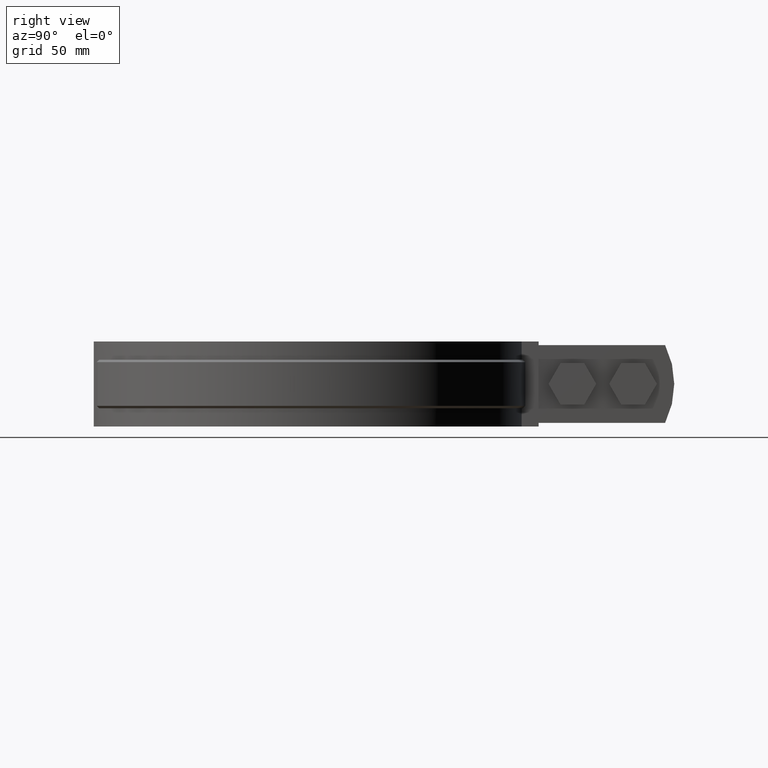
[diagram: clean part render]
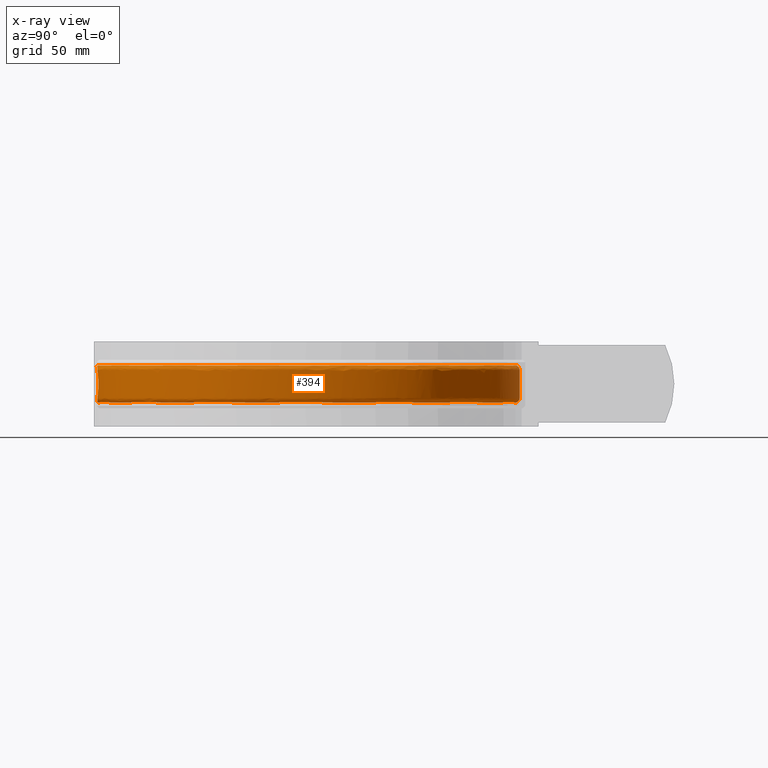
[diagram: x-ray — body ghosted, one internal face saturated and labeled with its STEP entity id]
A machine part, right view, then the same camera in x-ray: the body is ghosted and one INTERNAL B-rep face — a face not visible from any outside direction — is saturated and labeled: STEP entity #394.
In plain terms, the highlighted face is a freeform B-spline surface patch.
Its self-contained STEP definition (entity closure, byte-faithful):
#394 = ADVANCED_FACE( '', ( #650, #651 ), #652, .T. );
#650 = FACE_BOUND( '', #1363, .T. );
#651 = FACE_OUTER_BOUND( '', #1364, .T. );
#652 = B_SPLINE_SURFACE_WITH_KNOTS( '', 3, 3, ( ( #1365, #1366, #1367, #1368, #1369, #1370, #1371, #1372, #1373, #1374, #1375, #1376, #1377, #1378, #1379, #1380, #1381 ), ( #1382, #1383, #1384, #1385, #1386, #1387, #1388, #1389, #1390, #1391, #1392, #1393, #1394, #1395, #1396, #1397, #1398 ), ( #1399, #1400, #1401, #1402, #1403, #1404, #1405, #1406, #1407, #1408, #1409, #1410, #1411, #1412, #1413, #1414, #1415 ), ( #1416, #1417, #1418, #1419, #1420, #1421, #1422, #1423, #1424, #1425, #1426, #1427, #1428, #1429, #1430, #1431, #1432 ), ( #1433, #1434, #1435, #1436, #1437, #1438, #1439, #1440, #1441, #1442, #1443, #1444, #1445, #1446, #1447, #1448, #1449 ), ( #1450, #1451, #1452, #1453, #1454, #1455, #1456, #1457, #1458, #1459, #1460, #1461, #1462, #1463, #1464, #1465, #1466 ), ( #1467, #1468, #1469, #1470, #1471, #1472, #1473, #1474, #1475, #1476, #1477, #1478, #1479, #1480, #1481, #1482, #1483 ), ( #1484, #1485, #1486, #1487, #1488, #1489, #1490, #1491, #1492, #1493, #1494, #1495, #1496, #1497, #1498, #1499, #1500 ), ( #1501, #1502, #1503, #1504, #1505, #1506, #1507, #1508, #1509, #1510, #1511, #1512, #1513, #1514, #1515, #1516, #1517 ), ( #1518, #1519, #1520, #1521, #1522, #1523, #1524, #1525, #1526, #1527, #1528, #1529, #1530, #1531, #1532, #1533, #1534 ), ( #1535, #1536, #1537, #1538, #1539, #1540, #1541, #1542, #1543, #1544, #1545, #1546, #1547, #1548, #1549, #1550, #1551 ), ( #1552, #1553, #1554, #1555, #1556, #1557, #1558, #1559, #1560, #1561, #1562, #1563, #1564, #1565, #1566, #1567, #1568 ), ( #1569, #1570, #1571, #1572, #1573, #1574, #1575, #1576, #1577, #1578, #1579, #1580, #1581, #1582, #1583, #1584, #1585 ), ( #1586, #1587, #1588, #1589, #1590, #1591, #1592, #1593, #1594, #1595, #1596, #1597, #1598, #1599, #1600, #1601, #1602 ), ( #1603, #1604, #1605, #1606, #1607, #1608, #1609, #1610, #1611, #1612, #1613, #1614, #1615, #1616, #1617, #1618, #1619 ), ( #1620, #1621, #1622, #1623, #1624, #1625, #1626, #1627, #1628, #1629, #1630, #1631, #1632, #1633, #1634, #1635, #1636 ), ( #1637, #1638, #1639, #1640, #1641, #1642, #1643, #1644, #1645, #1646, #1647, #1648, #1649, #1650, #1651, #1652, #1653 ), ( #1654, #1655, #1656, #1657, #1658, #1659, #1660, #1661, #1662, #1663, #1664, #1665, #1666, #1667, #1668, #1669, #1670 ), ( #1671, #1672, #1673, #1674, #1675, #1676, #1677, #1678, #1679, #1680, #1681, #1682, #1683, #1684, #1685, #1686, #1687 ), ( #1688, #1689, #1690, #1691, #1692, #1693, #1694, #1695, #1696, #1697, #1698, #1699, #1700, #1701, #1702, #1703, #1704 ), ( #1705, #1706, #1707, #1708, #1709, #1710, #1711, #1712, #1713, #1714, #1715, #1716, #1717, #1718, #1719, #1720, #1721 ), ( #1722, #1723, #1724, #1725, #1726, #1727, #1728, #1729, #1730, #1731, #1732, #1733, #1734, #1735, #1736, #1737, #1738 ) ), .UNSPECIFIED., .F., .F., .F., ( 4, 3, 1, 1, 1, 3, 3, 1, 1, 1, 3, 4 ), ( 4, 1, 1, 1, 1, 1, 1, 1, 1, 1, 1, 1, 1, 1, 4 ), ( 0.000000000000000, 0.0909090909090909, 0.181818181818182, 0.272727272727273, 0.363636363636364, 0.454545454545455, 0.545454545454545, 0.636363636363636, 0.727272727272727, 0.818181818181818, 0.909090909090909, 1.00000000000000 ), ( 2.94817470159169, 4.00000000000000, 5.00000000000000, 6.00000000000000, 7.00000000000000, 8.00000000000000, 9.00000000000000, 10.0000000000000, 11.0000000000000, 12.0000000000000, 13.0000000000000, 14.0000000000000, 15.0000000000000, 16.0000000000000, 17.0000000000000 ), .UNSPECIFIED. );
#1363 = EDGE_LOOP( '', ( #3634, #3635, #3636, #3637, #3638, #3639 ) );
#1364 = EDGE_LOOP( '', ( #3640, #3641, #3642, #3643 ) );
#1365 = CARTESIAN_POINT( '', ( -4.57373842755548, 84.4836495014351, -25.5000000000000 ) );
#1366 = CARTESIAN_POINT( '', ( -17.6140169030165, 83.7785484212474, -25.5000000000000 ) );
#1367 = CARTESIAN_POINT( '', ( -42.7501224215282, 76.3907897944503, -25.5000000000000 ) );
#1368 = CARTESIAN_POINT( '', ( -71.4956709775378, 50.2505123432270, -25.5000000000000 ) );
#1369 = CARTESIAN_POINT( '', ( -86.1002312614292, 14.9572072467204, -25.5000000000000 ) );
#1370 = CARTESIAN_POINT( '', ( -84.2552280888624, -23.1941572600242, -25.5000000000000 ) );
#1371 = CARTESIAN_POINT( '', ( -66.3149285777702, -56.9144403506470, -25.5000000000000 ) );
#1372 = CARTESIAN_POINT( '', ( -35.7060700331207, -79.7621372297763, -25.5000000000000 ) );
#1373 = CARTESIAN_POINT( '', ( 1.72386383356951, -87.3724799998223, -25.5000000000000 ) );
#1374 = CARTESIAN_POINT( '', ( 38.8244802352373, -78.2916402695728, -25.5000000000000 ) );
#1375 = CARTESIAN_POINT( '', ( 68.5082946679775, -54.2543907568589, -25.5000000000000 ) );
#1376 = CARTESIAN_POINT( '', ( 85.1045474199366, -19.8526038891576, -25.5000000000000 ) );
#1377 = CARTESIAN_POINT( '', ( 85.4432300146408, 18.3414873582820, -25.5000000000000 ) );
#1378 = CARTESIAN_POINT( '', ( 69.4579498746001, 53.0325875294891, -25.5000000000000 ) );
#1379 = CARTESIAN_POINT( '', ( 40.2087681660690, 77.5893697278056, -25.5000000000000 ) );
#1380 = CARTESIAN_POINT( '', ( 15.5760698412748, 84.0871317769174, -25.5000000000000 ) );
#1381 = CARTESIAN_POINT( '', ( 3.16749899997406, 84.5477663442119, -25.5000000000000 ) );
#1382 = CARTESIAN_POINT( '', ( -4.55503173385747, 85.2881737615936, -24.6952621458756 ) );
#1383 = CARTESIAN_POINT( '', ( -17.7220381476268, 84.5859650730103, -24.6952621458756 ) );
#1384 = CARTESIAN_POINT( '', ( -43.0987477430875, 77.1464507352005, -24.6952621458756 ) );
#1385 = CARTESIAN_POINT( '', ( -72.1372249274320, 50.7793048320895, -24.6952621458756 ) );
#1386 = CARTESIAN_POINT( '', ( -86.9057531623599, 15.1619661527957, -24.6952621458756 ) );
#1387 = CARTESIAN_POINT( '', ( -85.0712176376558, -23.3525480085753, -24.6952621458756 ) );
#1388 = CARTESIAN_POINT( '', ( -66.9854009723252, -57.4057226091606, -24.6952621458756 ) );
#1389 = CARTESIAN_POINT( '', ( -36.1029690476388, -80.4924590207758, -24.6952621458757 ) );
#1390 = CARTESIAN_POINT( '', ( 1.67636654314826, -88.2023244071327, -24.6952621458756 ) );
#1391 = CARTESIAN_POINT( '', ( 39.1354582900263, -79.0624783820023, -24.6952621458756 ) );
#1392 = CARTESIAN_POINT( '', ( 69.1183336662526, -54.8189648529472, -24.6952621458757 ) );
#1393 = CARTESIAN_POINT( '', ( 85.8971358356805, -20.1030638184777, -24.6952621458756 ) );
#1394 = CARTESIAN_POINT( '', ( 86.2668541452362, 18.4529998418757, -24.6952621458757 ) );
#1395 = CARTESIAN_POINT( '', ( 70.1556487642159, 53.4847260329716, -24.6952621458756 ) );
#1396 = CARTESIAN_POINT( '', ( 40.6458392590685, 78.2959229100007, -24.6952621458756 ) );
#1397 = CARTESIAN_POINT( '', ( 15.7872527803084, 84.8729054578480, -24.6952621458757 ) );
#1398 = CARTESIAN_POINT( '', ( 3.25931876250112, 85.3472487674522, -24.6952621458757 ) );
#1399 = CARTESIAN_POINT( '', ( -4.53632504015947, 86.0926980217522, -23.8905242917513 ) );
#1400 = CARTESIAN_POINT( '', ( -17.8300593922371, 85.3933817247733, -23.8905242917513 ) );
#1401 = CARTESIAN_POINT( '', ( -43.4473730646468, 77.9021116759507, -23.8905242917513 ) );
#1402 = CARTESIAN_POINT( '', ( -72.7787788773263, 51.3080973209521, -23.8905242917513 ) );
#1403 = CARTESIAN_POINT( '', ( -87.7112750632906, 15.3667250588710, -23.8905242917513 ) );
#1404 = CARTESIAN_POINT( '', ( -85.8872071864492, -23.5109387571263, -23.8905242917513 ) );
#1405 = CARTESIAN_POINT( '', ( -67.6558733668801, -57.8970048676741, -23.8905242917513 ) );
#1406 = CARTESIAN_POINT( '', ( -36.4998680621569, -81.2227808117754, -23.8905242917513 ) );
#1407 = CARTESIAN_POINT( '', ( 1.62886925272701, -89.0321688144431, -23.8905242917513 ) );
#1408 = CARTESIAN_POINT( '', ( 39.4464363448153, -79.8333164944318, -23.8905242917513 ) );
#1409 = CARTESIAN_POINT( '', ( 69.7283726645276, -55.3835389490356, -23.8905242917513 ) );
#1410 = CARTESIAN_POINT( '', ( 86.6897242514245, -20.3535237477978, -23.8905242917513 ) );
#1411 = CARTESIAN_POINT( '', ( 87.0904782758316, 18.5645123254694, -23.8905242917513 ) );
#1412 = CARTESIAN_POINT( '', ( 70.8533476538316, 53.9368645364541, -23.8905242917513 ) );
#1413 = CARTESIAN_POINT( '', ( 41.0829103520679, 79.0024760921958, -23.8905242917513 ) );
#1414 = CARTESIAN_POINT( '', ( 15.9984357193421, 85.6586791387786, -23.8905242917513 ) );
#1415 = CARTESIAN_POINT( '', ( 3.35113852502818, 86.1467311906925, -23.8905242917513 ) );
#1416 = CARTESIAN_POINT( '', ( -4.51761834646146, 86.8972222819107, -23.0857864376269 ) );
#1417 = CARTESIAN_POINT( '', ( -17.9380806368474, 86.2007983765362, -23.0857864376269 ) );
#1418 = CARTESIAN_POINT( '', ( -43.7959983862061, 78.6577726167009, -23.0857864376269 ) );
#1419 = CARTESIAN_POINT( '', ( -73.4203328272206, 51.8368898098147, -23.0857864376269 ) );
#1420 = CARTESIAN_POINT( '', ( -88.5167969642214, 15.5714839649463, -23.0857864376269 ) );
#1421 = CARTESIAN_POINT( '', ( -86.7031967352426, -23.6693295056774, -23.0857864376269 ) );
#1422 = CARTESIAN_POINT( '', ( -68.3263457614351, -58.3882871261876, -23.0857864376269 ) );
#1423 = CARTESIAN_POINT( '', ( -36.8967670766750, -81.9531026027749, -23.0857864376269 ) );
#1424 = CARTESIAN_POINT( '', ( 1.58137196230576, -89.8620132217535, -23.0857864376269 ) );
#1425 = CARTESIAN_POINT( '', ( 39.7574143996044, -80.6041546068613, -23.0857864376269 ) );
#1426 = CARTESIAN_POINT( '', ( 70.3384116628027, -55.9481130451239, -23.0857864376269 ) );
#1427 = CARTESIAN_POINT( '', ( 87.4823126671685, -20.6039836771179, -23.0857864376269 ) );
#1428 = CARTESIAN_POINT( '', ( 87.9141024064269, 18.6760248090632, -23.0857864376269 ) );
#1429 = CARTESIAN_POINT( '', ( 71.5510465434473, 54.3890030399366, -23.0857864376269 ) );
#1430 = CARTESIAN_POINT( '', ( 41.5199814450674, 79.7090292743909, -23.0857864376269 ) );
#1431 = CARTESIAN_POINT( '', ( 16.2096186583757, 86.4444528197092, -23.0857864376269 ) );
#1432 = CARTESIAN_POINT( '', ( 3.44295828755524, 86.9462136139328, -23.0857864376269 ) );
#1433 = CARTESIAN_POINT( '', ( -4.51546674101459, 86.9897570081558, -22.9932271442431 ) );
#1434 = CARTESIAN_POINT( '', ( -17.9505050183032, 86.2936657797167, -22.9932271442431 ) );
#1435 = CARTESIAN_POINT( '', ( -43.8360965538937, 78.7446871844140, -22.9932271442431 ) );
#1436 = CARTESIAN_POINT( '', ( -73.4941230434574, 51.8977104346491, -22.9932271442431 ) );
#1437 = CARTESIAN_POINT( '', ( -88.6094464370567, 15.5950349133244, -22.9932271442431 ) );
#1438 = CARTESIAN_POINT( '', ( -86.7970501754129, -23.6875472839132, -22.9932271442431 ) );
#1439 = CARTESIAN_POINT( '', ( -68.4034621177184, -58.4447934014510, -22.9932271442431 ) );
#1440 = CARTESIAN_POINT( '', ( -36.9424175852726, -82.0371027135827, -22.9932271442431 ) );
#1441 = CARTESIAN_POINT( '', ( 1.57590892161928, -89.9574602192639, -22.9932271442431 ) );
#1442 = CARTESIAN_POINT( '', ( 39.7931824560734, -80.6928148216556, -22.9932271442431 ) );
#1443 = CARTESIAN_POINT( '', ( 70.4085770941012, -56.0130491968520, -22.9932271442431 ) );
#1444 = CARTESIAN_POINT( '', ( 87.5734745571299, -20.6327910632251, -22.9932271442431 ) );
#1445 = CARTESIAN_POINT( '', ( 88.0088339604989, 18.6888507456486, -22.9932271442431 ) );
#1446 = CARTESIAN_POINT( '', ( 71.6312944352130, 54.4410070809786, -22.9932271442431 ) );
#1447 = CARTESIAN_POINT( '', ( 41.5702524635353, 79.7902955686840, -22.9932271442431 ) );
#1448 = CARTESIAN_POINT( '', ( 16.2339084858164, 86.5348308928840, -22.9932271442431 ) );
#1449 = CARTESIAN_POINT( '', ( 3.45351920785322, 87.0381684384618, -22.9932271442431 ) );
#1450 = CARTESIAN_POINT( '', ( -4.51158735940072, 87.1565987105515, -22.7898759680773 ) );
#1451 = CARTESIAN_POINT( '', ( -17.9729063916840, 86.4611073043467, -22.7898759680773 ) );
#1452 = CARTESIAN_POINT( '', ( -43.9083942396537, 78.9013956443477, -22.7898759680773 ) );
#1453 = CARTESIAN_POINT( '', ( -73.6271680720287, 52.0073710669320, -22.7898759680773 ) );
#1454 = CARTESIAN_POINT( '', ( -88.7764950295278, 15.6374976781682, -22.7898759680773 ) );
#1455 = CARTESIAN_POINT( '', ( -86.9662695416891, -23.7203942512959, -22.7898759680773 ) );
#1456 = CARTESIAN_POINT( '', ( -68.5425042339808, -58.5466751872794, -22.7898759680773 ) );
#1457 = CARTESIAN_POINT( '', ( -37.0247262371563, -82.1885563576071, -22.7898759680773 ) );
#1458 = CARTESIAN_POINT( '', ( 1.56605896533393, -90.1295527968227, -22.7898759680773 ) );
#1459 = CARTESIAN_POINT( '', ( 39.8576728768576, -80.8526707132901, -22.7898759680773 ) );
#1460 = CARTESIAN_POINT( '', ( 70.5350865731068, -56.1301301948835, -22.7898759680773 ) );
#1461 = CARTESIAN_POINT( '', ( 87.7378410121027, -20.6847312756700, -22.7898759680773 ) );
#1462 = CARTESIAN_POINT( '', ( 88.1796365812373, 18.7119761298322, -22.7898759680773 ) );
#1463 = CARTESIAN_POINT( '', ( 71.7759827637913, 54.5347712610977, -22.7898759680773 ) );
#1464 = CARTESIAN_POINT( '', ( 41.6608919741569, 79.9368200945290, -22.7898759680773 ) );
#1465 = CARTESIAN_POINT( '', ( 16.2777034623139, 86.6977841127140, -22.7898759680773 ) );
#1466 = CARTESIAN_POINT( '', ( 3.47256072872739, 87.2039645680932, -22.7898759680773 ) );
#1467 = CARTESIAN_POINT( '', ( -4.50726339850927, 87.3425605642765, -22.4418734431229 ) );
#1468 = CARTESIAN_POINT( '', ( -17.9978749748383, 86.6477377202657, -22.4418734431229 ) );
#1469 = CARTESIAN_POINT( '', ( -43.9889772801699, 79.0760629804225, -22.4418734431229 ) );
#1470 = CARTESIAN_POINT( '', ( -73.7754601344252, 52.1295988682979, -22.4418734431229 ) );
#1471 = CARTESIAN_POINT( '', ( -88.9626874830452, 15.6848266993378, -22.4418734431229 ) );
#1472 = CARTESIAN_POINT( '', ( -87.1548815408897, -23.7570054992993, -22.4418734431229 ) );
#1473 = CARTESIAN_POINT( '', ( -68.6974806536332, -58.6602326820868, -22.4418734431229 ) );
#1474 = CARTESIAN_POINT( '', ( -37.1164675060484, -82.3573666729645, -22.4418734431230 ) );
#1475 = CARTESIAN_POINT( '', ( 1.55508019861295, -90.3213672789073, -22.4418734431229 ) );
#1476 = CARTESIAN_POINT( '', ( 39.9295539355158, -81.0308461784787, -22.4418734431229 ) );
#1477 = CARTESIAN_POINT( '', ( 70.6760941083443, -56.2606287400150, -22.4418734431229 ) );
#1478 = CARTESIAN_POINT( '', ( 87.9210439536817, -20.7426238651750, -22.4418734431229 ) );
#1479 = CARTESIAN_POINT( '', ( 88.3700132767368, 18.7377516958275, -22.4418734431229 ) );
#1480 = CARTESIAN_POINT( '', ( 71.9372524548125, 54.6392808680939, -22.4418734431229 ) );
#1481 = CARTESIAN_POINT( '', ( 41.7619188228039, 80.1001364120387, -22.4418734431229 ) );
#1482 = CARTESIAN_POINT( '', ( 16.3265173673291, 86.8794118616217, -22.4418734431230 ) );
#1483 = CARTESIAN_POINT( '', ( 3.49378441842042, 87.3887610258371, -22.4418734431230 ) );
#1484 = CARTESIAN_POINT( '', ( -4.50460071653933, 87.4570753083829, -22.0642686993349 ) );
#1485 = CARTESIAN_POINT( '', ( -18.0132505524277, 86.7626641629383, -22.0642686993349 ) );
#1486 = CARTESIAN_POINT( '', ( -44.0386000715069, 79.1836225949009, -22.0642686993349 ) );
#1487 = CARTESIAN_POINT( '', ( -73.8667779355666, 52.2048663767452, -22.0642686993349 ) );
#1488 = CARTESIAN_POINT( '', ( -89.0773442298026, 15.7139717666700, -22.0642686993349 ) );
#1489 = CARTESIAN_POINT( '', ( -87.2710282365221, -23.7795505945032, -22.0642686993349 ) );
#1490 = CARTESIAN_POINT( '', ( -68.7929146616490, -58.7301610421174, -22.0642686993349 ) );
#1491 = CARTESIAN_POINT( '', ( -37.1729615004926, -82.4613195518935, -22.0642686993349 ) );
#1492 = CARTESIAN_POINT( '', ( 1.54831950744714, -90.4394860537625, -22.0642686993349 ) );
#1493 = CARTESIAN_POINT( '', ( 39.9738180728829, -81.1405660881989, -22.0642686993349 ) );
#1494 = CARTESIAN_POINT( '', ( 70.7629261198098, -56.3409893473259, -22.0642686993349 ) );
#1495 = CARTESIAN_POINT( '', ( 88.0338597680771, -20.7782739457697, -22.0642686993349 ) );
#1496 = CARTESIAN_POINT( '', ( 88.4872466669846, 18.7536242109968, -22.0642686993349 ) );
#1497 = CARTESIAN_POINT( '', ( 72.0365618402025, 54.7036375663204, -22.0642686993349 ) );
#1498 = CARTESIAN_POINT( '', ( 41.8241308490282, 80.2007061037975, -22.0642686993349 ) );
#1499 = CARTESIAN_POINT( '', ( 16.3565768216186, 86.9912576771594, -22.0642686993349 ) );
#1500 = CARTESIAN_POINT( '', ( 3.50685390200271, 87.5025581226417, -22.0642686993349 ) );
#1501 = CARTESIAN_POINT( '', ( -4.50400133142361, 87.4828532397778, -21.8024714832808 ) );
#1502 = CARTESIAN_POINT( '', ( -18.0167116838946, 86.7885347700622, -21.8024714832808 ) );
#1503 = CARTESIAN_POINT( '', ( -44.0497704489171, 79.2078348863794, -21.8024714832808 ) );
#1504 = CARTESIAN_POINT( '', ( -73.8873341008999, 52.2218095283380, -21.8024714832809 ) );
#1505 = CARTESIAN_POINT( '', ( -89.1031541268157, 15.7205324899380, -21.8024714832808 ) );
#1506 = CARTESIAN_POINT( '', ( -87.2971735296468, -23.7846256258627, -21.8024714832808 ) );
#1507 = CARTESIAN_POINT( '', ( -68.8143974089630, -58.7459023205134, -21.8024714832808 ) );
#1508 = CARTESIAN_POINT( '', ( -37.1856786254739, -82.4847199463338, -21.8024714832809 ) );
#1509 = CARTESIAN_POINT( '', ( 1.54679763675341, -90.4660752733292, -21.8024714832808 ) );
#1510 = CARTESIAN_POINT( '', ( 39.9837821862834, -81.1652646746341, -21.8024714832808 ) );
#1511 = CARTESIAN_POINT( '', ( 70.7824725079357, -56.3590789849378, -21.8024714832809 ) );
#1512 = CARTESIAN_POINT( '', ( 88.0592552605653, -20.7862989851562, -21.8024714832809 ) );
#1513 = CARTESIAN_POINT( '', ( 88.5136365813540, 18.7571972059878, -21.8024714832809 ) );
#1514 = CARTESIAN_POINT( '', ( 72.0589169573835, 54.7181246314109, -21.8024714832808 ) );
#1515 = CARTESIAN_POINT( '', ( 41.8381351360435, 80.2233449232333, -21.8024714832808 ) );
#1516 = CARTESIAN_POINT( '', ( 16.3633433786807, 87.0164348172930, -21.8024714832809 ) );
#1517 = CARTESIAN_POINT( '', ( 3.50979591836732, 87.5281745074772, -21.8024714832809 ) );
#1518 = CARTESIAN_POINT( '', ( -4.50400133142361, 87.4828532397778, -21.6715728752538 ) );
#1519 = CARTESIAN_POINT( '', ( -18.0167116838946, 86.7885347700622, -21.6715728752538 ) );
#1520 = CARTESIAN_POINT( '', ( -44.0497704489171, 79.2078348863794, -21.6715728752538 ) );
#1521 = CARTESIAN_POINT( '', ( -73.8873341008999, 52.2218095283380, -21.6715728752538 ) );
#1522 = CARTESIAN_POINT( '', ( -89.1031541268157, 15.7205324899380, -21.6715728752538 ) );
#1523 = CARTESIAN_POINT( '', ( -87.2971735296468, -23.7846256258627, -21.6715728752538 ) );
#1524 = CARTESIAN_POINT( '', ( -68.8143974089630, -58.7459023205134, -21.6715728752538 ) );
#1525 = CARTESIAN_POINT( '', ( -37.1856786254739, -82.4847199463338, -21.6715728752538 ) );
#1526 = CARTESIAN_POINT( '', ( 1.54679763675341, -90.4660752733292, -21.6715728752538 ) );
#1527 = CARTESIAN_POINT( '', ( 39.9837821862834, -81.1652646746341, -21.6715728752538 ) );
#1528 = CARTESIAN_POINT( '', ( 70.7824725079357, -56.3590789849378, -21.6715728752538 ) );
#1529 = CARTESIAN_POINT( '', ( 88.0592552605653, -20.7862989851562, -21.6715728752538 ) );
#1530 = CARTESIAN_POINT( '', ( 88.5136365813540, 18.7571972059878, -21.6715728752538 ) );
#1531 = CARTESIAN_POINT( '', ( 72.0589169573835, 54.7181246314109, -21.6715728752538 ) );
#1532 = CARTESIAN_POINT( '', ( 41.8381351360435, 80.2233449232333, -21.6715728752538 ) );
#1533 = CARTESIAN_POINT( '', ( 16.3633433786807, 87.0164348172930, -21.6715728752538 ) );
#1534 = CARTESIAN_POINT( '', ( 3.50979591836732, 87.5281745074772, -21.6715728752538 ) );
#1535 = CARTESIAN_POINT( '', ( -4.50400133142361, 87.4828532397778, -17.8905242917513 ) );
#1536 = CARTESIAN_POINT( '', ( -18.0167116838946, 86.7885347700622, -17.8905242917513 ) );
#1537 = CARTESIAN_POINT( '', ( -44.0497704489171, 79.2078348863794, -17.8905242917513 ) );
#1538 = CARTESIAN_POINT( '', ( -73.8873341008999, 52.2218095283380, -17.8905242917513 ) );
#1539 = CARTESIAN_POINT( '', ( -89.1031541268157, 15.7205324899380, -17.8905242917513 ) );
#1540 = CARTESIAN_POINT( '', ( -87.2971735296468, -23.7846256258627, -17.8905242917513 ) );
#1541 = CARTESIAN_POINT( '', ( -68.8143974089630, -58.7459023205134, -17.8905242917513 ) );
#1542 = CARTESIAN_POINT( '', ( -37.1856786254739, -82.4847199463338, -17.8905242917513 ) );
#1543 = CARTESIAN_POINT( '', ( 1.54679763675341, -90.4660752733292, -17.8905242917513 ) );
#1544 = CARTESIAN_POINT( '', ( 39.9837821862834, -81.1652646746341, -17.8905242917513 ) );
#1545 = CARTESIAN_POINT( '', ( 70.7824725079357, -56.3590789849378, -17.8905242917513 ) );
#1546 = CARTESIAN_POINT( '', ( 88.0592552605653, -20.7862989851562, -17.8905242917513 ) );
#1547 = CARTESIAN_POINT( '', ( 88.5136365813540, 18.7571972059878, -17.8905242917513 ) );
#1548 = CARTESIAN_POINT( '', ( 72.0589169573834, 54.7181246314109, -17.8905242917513 ) );
#1549 = CARTESIAN_POINT( '', ( 41.8381351360435, 80.2233449232333, -17.8905242917513 ) );
#1550 = CARTESIAN_POINT( '', ( 16.3633433786807, 87.0164348172930, -17.8905242917513 ) );
#1551 = CARTESIAN_POINT( '', ( 3.50979591836732, 87.5281745074772, -17.8905242917513 ) );
#1552 = CARTESIAN_POINT( '', ( -4.50400133142361, 87.4828532397778, -14.1094757082487 ) );
#1553 = CARTESIAN_POINT( '', ( -18.0167116838946, 86.7885347700622, -14.1094757082487 ) );
#1554 = CARTESIAN_POINT( '', ( -44.0497704489171, 79.2078348863794, -14.1094757082487 ) );
#1555 = CARTESIAN_POINT( '', ( -73.8873341008999, 52.2218095283380, -14.1094757082487 ) );
#1556 = CARTESIAN_POINT( '', ( -89.1031541268157, 15.7205324899380, -14.1094757082487 ) );
#1557 = CARTESIAN_POINT( '', ( -87.2971735296468, -23.7846256258627, -14.1094757082487 ) );
#1558 = CARTESIAN_POINT( '', ( -68.8143974089630, -58.7459023205134, -14.1094757082487 ) );
#1559 = CARTESIAN_POINT( '', ( -37.1856786254739, -82.4847199463338, -14.1094757082488 ) );
#1560 = CARTESIAN_POINT( '', ( 1.54679763675341, -90.4660752733292, -14.1094757082487 ) );
#1561 = CARTESIAN_POINT( '', ( 39.9837821862834, -81.1652646746341, -14.1094757082487 ) );
#1562 = CARTESIAN_POINT( '', ( 70.7824725079357, -56.3590789849378, -14.1094757082488 ) );
#1563 = CARTESIAN_POINT( '', ( 88.0592552605653, -20.7862989851562, -14.1094757082487 ) );
#1564 = CARTESIAN_POINT( '', ( 88.5136365813540, 18.7571972059878, -14.1094757082488 ) );
#1565 = CARTESIAN_POINT( '', ( 72.0589169573834, 54.7181246314109, -14.1094757082487 ) );
#1566 = CARTESIAN_POINT( '', ( 41.8381351360435, 80.2233449232333, -14.1094757082487 ) );
#1567 = CARTESIAN_POINT( '', ( 16.3633433786807, 87.0164348172930, -14.1094757082488 ) );
#1568 = CARTESIAN_POINT( '', ( 3.50979591836732, 87.5281745074772, -14.1094757082488 ) );
#1569 = CARTESIAN_POINT( '', ( -4.50400133142361, 87.4828532397778, -10.3284271247462 ) );
#1570 = CARTESIAN_POINT( '', ( -18.0167116838946, 86.7885347700622, -10.3284271247462 ) );
#1571 = CARTESIAN_POINT( '', ( -44.0497704489171, 79.2078348863794, -10.3284271247462 ) );
#1572 = CARTESIAN_POINT( '', ( -73.8873341008999, 52.2218095283380, -10.3284271247462 ) );
#1573 = CARTESIAN_POINT( '', ( -89.1031541268157, 15.7205324899380, -10.3284271247462 ) );
#1574 = CARTESIAN_POINT( '', ( -87.2971735296468, -23.7846256258627, -10.3284271247462 ) );
#1575 = CARTESIAN_POINT( '', ( -68.8143974089630, -58.7459023205134, -10.3284271247462 ) );
#1576 = CARTESIAN_POINT( '', ( -37.1856786254739, -82.4847199463338, -10.3284271247462 ) );
#1577 = CARTESIAN_POINT( '', ( 1.54679763675341, -90.4660752733292, -10.3284271247462 ) );
#1578 = CARTESIAN_POINT( '', ( 39.9837821862834, -81.1652646746341, -10.3284271247462 ) );
#1579 = CARTESIAN_POINT( '', ( 70.7824725079357, -56.3590789849378, -10.3284271247462 ) );
#1580 = CARTESIAN_POINT( '', ( 88.0592552605653, -20.7862989851562, -10.3284271247462 ) );
#1581 = CARTESIAN_POINT( '', ( 88.5136365813540, 18.7571972059878, -10.3284271247462 ) );
#1582 = CARTESIAN_POINT( '', ( 72.0589169573834, 54.7181246314109, -10.3284271247462 ) );
#1583 = CARTESIAN_POINT( '', ( 41.8381351360435, 80.2233449232333, -10.3284271247462 ) );
#1584 = CARTESIAN_POINT( '', ( 16.3633433786807, 87.0164348172930, -10.3284271247462 ) );
#1585 = CARTESIAN_POINT( '', ( 3.50979591836732, 87.5281745074772, -10.3284271247462 ) );
#1586 = CARTESIAN_POINT( '', ( -4.50400133142361, 87.4828532397778, -10.1975285167192 ) );
#1587 = CARTESIAN_POINT( '', ( -18.0167116838946, 86.7885347700622, -10.1975285167192 ) );
#1588 = CARTESIAN_POINT( '', ( -44.0497704489171, 79.2078348863794, -10.1975285167192 ) );
#1589 = CARTESIAN_POINT( '', ( -73.8873341008999, 52.2218095283380, -10.1975285167192 ) );
#1590 = CARTESIAN_POINT( '', ( -89.1031541268157, 15.7205324899380, -10.1975285167192 ) );
#1591 = CARTESIAN_POINT( '', ( -87.2971735296468, -23.7846256258627, -10.1975285167192 ) );
#1592 = CARTESIAN_POINT( '', ( -68.8143974089630, -58.7459023205134, -10.1975285167192 ) );
#1593 = CARTESIAN_POINT( '', ( -37.1856786254739, -82.4847199463338, -10.1975285167192 ) );
#1594 = CARTESIAN_POINT( '', ( 1.54679763675341, -90.4660752733292, -10.1975285167192 ) );
#1595 = CARTESIAN_POINT( '', ( 39.9837821862834, -81.1652646746341, -10.1975285167192 ) );
#1596 = CARTESIAN_POINT( '', ( 70.7824725079357, -56.3590789849378, -10.1975285167192 ) );
#1597 = CARTESIAN_POINT( '', ( 88.0592552605653, -20.7862989851562, -10.1975285167192 ) );
#1598 = CARTESIAN_POINT( '', ( 88.5136365813540, 18.7571972059878, -10.1975285167192 ) );
#1599 = CARTESIAN_POINT( '', ( 72.0589169573834, 54.7181246314109, -10.1975285167192 ) );
#1600 = CARTESIAN_POINT( '', ( 41.8381351360435, 80.2233449232333, -10.1975285167192 ) );
#1601 = CARTESIAN_POINT( '', ( 16.3633433786807, 87.0164348172930, -10.1975285167192 ) );
#1602 = CARTESIAN_POINT( '', ( 3.50979591836732, 87.5281745074772, -10.1975285167192 ) );
#1603 = CARTESIAN_POINT( '', ( -4.50460071653933, 87.4570753083829, -9.93573130066511 ) );
#1604 = CARTESIAN_POINT( '', ( -18.0132505524277, 86.7626641629383, -9.93573130066511 ) );
#1605 = CARTESIAN_POINT( '', ( -44.0386000715068, 79.1836225949009, -9.93573130066511 ) );
#1606 = CARTESIAN_POINT( '', ( -73.8667779355666, 52.2048663767452, -9.93573130066511 ) );
#1607 = CARTESIAN_POINT( '', ( -89.0773442298026, 15.7139717666700, -9.93573130066510 ) );
#1608 = CARTESIAN_POINT( '', ( -87.2710282365221, -23.7795505945032, -9.93573130066511 ) );
#1609 = CARTESIAN_POINT( '', ( -68.7929146616490, -58.7301610421174, -9.93573130066510 ) );
#1610 = CARTESIAN_POINT( '', ( -37.1729615004926, -82.4613195518935, -9.93573130066511 ) );
#1611 = CARTESIAN_POINT( '', ( 1.54831950744713, -90.4394860537625, -9.93573130066511 ) );
#1612 = CARTESIAN_POINT( '', ( 39.9738180728829, -81.1405660881989, -9.93573130066510 ) );
#1613 = CARTESIAN_POINT( '', ( 70.7629261198098, -56.3409893473259, -9.93573130066511 ) );
#1614 = CARTESIAN_POINT( '', ( 88.0338597680771, -20.7782739457697, -9.93573130066511 ) );
#1615 = CARTESIAN_POINT( '', ( 88.4872466669846, 18.7536242109968, -9.93573130066511 ) );
#1616 = CARTESIAN_POINT( '', ( 72.0365618402025, 54.7036375663204, -9.93573130066511 ) );
#1617 = CARTESIAN_POINT( '', ( 41.8241308490282, 80.2007061037975, -9.93573130066511 ) );
#1618 = CARTESIAN_POINT( '', ( 16.3565768216186, 86.9912576771594, -9.93573130066511 ) );
#1619 = CARTESIAN_POINT( '', ( 3.50685390200271, 87.5025581226417, -9.93573130066511 ) );
#1620 = CARTESIAN_POINT( '', ( -4.50726339850927, 87.3425605642765, -9.55812655687708 ) );
#1621 = CARTESIAN_POINT( '', ( -17.9978749748383, 86.6477377202657, -9.55812655687708 ) );
#1622 = CARTESIAN_POINT( '', ( -43.9889772801699, 79.0760629804225, -9.55812655687709 ) );
#1623 = CARTESIAN_POINT( '', ( -73.7754601344252, 52.1295988682979, -9.55812655687709 ) );
#1624 = CARTESIAN_POINT( '', ( -88.9626874830452, 15.6848266993378, -9.55812655687708 ) );
#1625 = CARTESIAN_POINT( '', ( -87.1548815408897, -23.7570054992993, -9.55812655687708 ) );
#1626 = CARTESIAN_POINT( '', ( -68.6974806536332, -58.6602326820868, -9.55812655687708 ) );
#1627 = CARTESIAN_POINT( '', ( -37.1164675060484, -82.3573666729645, -9.55812655687709 ) );
#1628 = CARTESIAN_POINT( '', ( 1.55508019861295, -90.3213672789073, -9.55812655687709 ) );
#1629 = CARTESIAN_POINT( '', ( 39.9295539355158, -81.0308461784787, -9.55812655687708 ) );
#1630 = CARTESIAN_POINT( '', ( 70.6760941083443, -56.2606287400150, -9.55812655687709 ) );
#1631 = CARTESIAN_POINT( '', ( 87.9210439536817, -20.7426238651750, -9.55812655687709 ) );
#1632 = CARTESIAN_POINT( '', ( 88.3700132767368, 18.7377516958275, -9.55812655687709 ) );
#1633 = CARTESIAN_POINT( '', ( 71.9372524548125, 54.6392808680939, -9.55812655687709 ) );
#1634 = CARTESIAN_POINT( '', ( 41.7619188228039, 80.1001364120387, -9.55812655687709 ) );
#1635 = CARTESIAN_POINT( '', ( 16.3265173673291, 86.8794118616217, -9.55812655687709 ) );
#1636 = CARTESIAN_POINT( '', ( 3.49378441842042, 87.3887610258371, -9.55812655687709 ) );
#1637 = CARTESIAN_POINT( '', ( -4.51158735940072, 87.1565987105515, -9.21012403192274 ) );
#1638 = CARTESIAN_POINT( '', ( -17.9729063916840, 86.4611073043467, -9.21012403192274 ) );
#1639 = CARTESIAN_POINT( '', ( -43.9083942396537, 78.9013956443477, -9.21012403192274 ) );
#1640 = CARTESIAN_POINT( '', ( -73.6271680720287, 52.0073710669320, -9.21012403192274 ) );
#1641 = CARTESIAN_POINT( '', ( -88.7764950295278, 15.6374976781682, -9.21012403192274 ) );
#1642 = CARTESIAN_POINT( '', ( -86.9662695416891, -23.7203942512959, -9.21012403192274 ) );
#1643 = CARTESIAN_POINT( '', ( -68.5425042339808, -58.5466751872794, -9.21012403192274 ) );
#1644 = CARTESIAN_POINT( '', ( -37.0247262371563, -82.1885563576071, -9.21012403192275 ) );
#1645 = CARTESIAN_POINT( '', ( 1.56605896533393, -90.1295527968227, -9.21012403192274 ) );
#1646 = CARTESIAN_POINT( '', ( 39.8576728768576, -80.8526707132901, -9.21012403192274 ) );
#1647 = CARTESIAN_POINT( '', ( 70.5350865731068, -56.1301301948835, -9.21012403192275 ) );
#1648 = CARTESIAN_POINT( '', ( 87.7378410121027, -20.6847312756700, -9.21012403192274 ) );
#1649 = CARTESIAN_POINT( '', ( 88.1796365812373, 18.7119761298322, -9.21012403192275 ) );
#1650 = CARTESIAN_POINT( '', ( 71.7759827637913, 54.5347712610977, -9.21012403192274 ) );
#1651 = CARTESIAN_POINT( '', ( 41.6608919741569, 79.9368200945290, -9.21012403192274 ) );
#1652 = CARTESIAN_POINT( '', ( 16.2777034623139, 86.6977841127140, -9.21012403192275 ) );
#1653 = CARTESIAN_POINT( '', ( 3.47256072872739, 87.2039645680932, -9.21012403192275 ) );
#1654 = CARTESIAN_POINT( '', ( -4.51546674101459, 86.9897570081558, -9.00677285575691 ) );
#1655 = CARTESIAN_POINT( '', ( -17.9505050183032, 86.2936657797167, -9.00677285575691 ) );
#1656 = CARTESIAN_POINT( '', ( -43.8360965538937, 78.7446871844140, -9.00677285575691 ) );
#1657 = CARTESIAN_POINT( '', ( -73.4941230434574, 51.8977104346491, -9.00677285575692 ) );
#1658 = CARTESIAN_POINT( '', ( -88.6094464370567, 15.5950349133244, -9.00677285575691 ) );
#1659 = CARTESIAN_POINT( '', ( -86.7970501754129, -23.6875472839132, -9.00677285575691 ) );
#1660 = CARTESIAN_POINT( '', ( -68.4034621177184, -58.4447934014510, -9.00677285575691 ) );
#1661 = CARTESIAN_POINT( '', ( -36.9424175852726, -82.0371027135827, -9.00677285575692 ) );
#1662 = CARTESIAN_POINT( '', ( 1.57590892161928, -89.9574602192639, -9.00677285575691 ) );
#1663 = CARTESIAN_POINT( '', ( 39.7931824560734, -80.6928148216556, -9.00677285575691 ) );
#1664 = CARTESIAN_POINT( '', ( 70.4085770941012, -56.0130491968520, -9.00677285575692 ) );
#1665 = CARTESIAN_POINT( '', ( 87.5734745571299, -20.6327910632251, -9.00677285575692 ) );
#1666 = CARTESIAN_POINT( '', ( 88.0088339604989, 18.6888507456486, -9.00677285575692 ) );
#1667 = CARTESIAN_POINT( '', ( 71.6312944352129, 54.4410070809786, -9.00677285575691 ) );
#1668 = CARTESIAN_POINT( '', ( 41.5702524635353, 79.7902955686840, -9.00677285575691 ) );
#1669 = CARTESIAN_POINT( '', ( 16.2339084858164, 86.5348308928840, -9.00677285575692 ) );
#1670 = CARTESIAN_POINT( '', ( 3.45351920785322, 87.0381684384618, -9.00677285575692 ) );
#1671 = CARTESIAN_POINT( '', ( -4.51761834646146, 86.8972222819108, -8.91421356237312 ) );
#1672 = CARTESIAN_POINT( '', ( -17.9380806368474, 86.2007983765363, -8.91421356237312 ) );
#1673 = CARTESIAN_POINT( '', ( -43.7959983862061, 78.6577726167009, -8.91421356237312 ) );
#1674 = CARTESIAN_POINT( '', ( -73.4203328272206, 51.8368898098147, -8.91421356237312 ) );
#1675 = CARTESIAN_POINT( '', ( -88.5167969642214, 15.5714839649463, -8.91421356237312 ) );
#1676 = CARTESIAN_POINT( '', ( -86.7031967352426, -23.6693295056774, -8.91421356237312 ) );
#1677 = CARTESIAN_POINT( '', ( -68.3263457614351, -58.3882871261876, -8.91421356237312 ) );
#1678 = CARTESIAN_POINT( '', ( -36.8967670766750, -81.9531026027749, -8.91421356237313 ) );
#1679 = CARTESIAN_POINT( '', ( 1.58137196230576, -89.8620132217535, -8.91421356237312 ) );
#1680 = CARTESIAN_POINT( '', ( 39.7574143996044, -80.6041546068613, -8.91421356237312 ) );
#1681 = CARTESIAN_POINT( '', ( 70.3384116628027, -55.9481130451239, -8.91421356237312 ) );
#1682 = CARTESIAN_POINT( '', ( 87.4823126671685, -20.6039836771179, -8.91421356237312 ) );
#1683 = CARTESIAN_POINT( '', ( 87.9141024064269, 18.6760248090632, -8.91421356237312 ) );
#1684 = CARTESIAN_POINT( '', ( 71.5510465434473, 54.3890030399366, -8.91421356237312 ) );
#1685 = CARTESIAN_POINT( '', ( 41.5199814450674, 79.7090292743909, -8.91421356237312 ) );
#1686 = CARTESIAN_POINT( '', ( 16.2096186583757, 86.4444528197092, -8.91421356237312 ) );
#1687 = CARTESIAN_POINT( '', ( 3.44295828755524, 86.9462136139328, -8.91421356237312 ) );
#1688 = CARTESIAN_POINT( '', ( -4.53632504015947, 86.0926980217522, -8.10947570824875 ) );
#1689 = CARTESIAN_POINT( '', ( -17.8300593922371, 85.3933817247733, -8.10947570824875 ) );
#1690 = CARTESIAN_POINT( '', ( -43.4473730646468, 77.9021116759507, -8.10947570824875 ) );
#1691 = CARTESIAN_POINT( '', ( -72.7787788773263, 51.3080973209521, -8.10947570824875 ) );
#1692 = CARTESIAN_POINT( '', ( -87.7112750632906, 15.3667250588710, -8.10947570824874 ) );
#1693 = CARTESIAN_POINT( '', ( -85.8872071864492, -23.5109387571263, -8.10947570824875 ) );
#1694 = CARTESIAN_POINT( '', ( -67.6558733668801, -57.8970048676741, -8.10947570824874 ) );
#1695 = CARTESIAN_POINT( '', ( -36.4998680621569, -81.2227808117754, -8.10947570824875 ) );
#1696 = CARTESIAN_POINT( '', ( 1.62886925272701, -89.0321688144431, -8.10947570824875 ) );
#1697 = CARTESIAN_POINT( '', ( 39.4464363448153, -79.8333164944318, -8.10947570824874 ) );
#1698 = CARTESIAN_POINT( '', ( 69.7283726645276, -55.3835389490356, -8.10947570824875 ) );
#1699 = CARTESIAN_POINT( '', ( 86.6897242514246, -20.3535237477978, -8.10947570824875 ) );
#1700 = CARTESIAN_POINT( '', ( 87.0904782758316, 18.5645123254694, -8.10947570824875 ) );
#1701 = CARTESIAN_POINT( '', ( 70.8533476538316, 53.9368645364541, -8.10947570824875 ) );
#1702 = CARTESIAN_POINT( '', ( 41.0829103520679, 79.0024760921958, -8.10947570824874 ) );
#1703 = CARTESIAN_POINT( '', ( 15.9984357193421, 85.6586791387786, -8.10947570824875 ) );
#1704 = CARTESIAN_POINT( '', ( 3.35113852502818, 86.1467311906925, -8.10947570824875 ) );
#1705 = CARTESIAN_POINT( '', ( -4.55503173385747, 85.2881737615936, -7.30473785412438 ) );
#1706 = CARTESIAN_POINT( '', ( -17.7220381476268, 84.5859650730103, -7.30473785412438 ) );
#1707 = CARTESIAN_POINT( '', ( -43.0987477430875, 77.1464507352005, -7.30473785412438 ) );
#1708 = CARTESIAN_POINT( '', ( -72.1372249274321, 50.7793048320896, -7.30473785412438 ) );
#1709 = CARTESIAN_POINT( '', ( -86.9057531623599, 15.1619661527957, -7.30473785412438 ) );
#1710 = CARTESIAN_POINT( '', ( -85.0712176376558, -23.3525480085753, -7.30473785412438 ) );
#1711 = CARTESIAN_POINT( '', ( -66.9854009723251, -57.4057226091606, -7.30473785412437 ) );
#1712 = CARTESIAN_POINT( '', ( -36.1029690476388, -80.4924590207758, -7.30473785412438 ) );
#1713 = CARTESIAN_POINT( '', ( 1.67636654314826, -88.2023244071327, -7.30473785412438 ) );
#1714 = CARTESIAN_POINT( '', ( 39.1354582900263, -79.0624783820023, -7.30473785412438 ) );
#1715 = CARTESIAN_POINT( '', ( 69.1183336662525, -54.8189648529472, -7.30473785412438 ) );
#1716 = CARTESIAN_POINT( '', ( 85.8971358356805, -20.1030638184777, -7.30473785412438 ) );
#1717 = CARTESIAN_POINT( '', ( 86.2668541452362, 18.4529998418757, -7.30473785412438 ) );
#1718 = CARTESIAN_POINT( '', ( 70.1556487642159, 53.4847260329716, -7.30473785412438 ) );
#1719 = CARTESIAN_POINT( '', ( 40.6458392590685, 78.2959229100007, -7.30473785412438 ) );
#1720 = CARTESIAN_POINT( '', ( 15.7872527803084, 84.8729054578480, -7.30473785412438 ) );
#1721 = CARTESIAN_POINT( '', ( 3.25931876250112, 85.3472487674522, -7.30473785412438 ) );
#1722 = CARTESIAN_POINT( '', ( -4.57373842755548, 84.4836495014351, -6.50000000000001 ) );
#1723 = CARTESIAN_POINT( '', ( -17.6140169030165, 83.7785484212474, -6.50000000000001 ) );
#1724 = CARTESIAN_POINT( '', ( -42.7501224215282, 76.3907897944503, -6.50000000000001 ) );
#1725 = CARTESIAN_POINT( '', ( -71.4956709775378, 50.2505123432270, -6.50000000000001 ) );
#1726 = CARTESIAN_POINT( '', ( -86.1002312614292, 14.9572072467204, -6.50000000000001 ) );
#1727 = CARTESIAN_POINT( '', ( -84.2552280888624, -23.1941572600242, -6.50000000000001 ) );
#1728 = CARTESIAN_POINT( '', ( -66.3149285777702, -56.9144403506470, -6.50000000000001 ) );
#1729 = CARTESIAN_POINT( '', ( -35.7060700331207, -79.7621372297763, -6.50000000000001 ) );
#1730 = CARTESIAN_POINT( '', ( 1.72386383356951, -87.3724799998223, -6.50000000000001 ) );
#1731 = CARTESIAN_POINT( '', ( 38.8244802352373, -78.2916402695729, -6.50000000000001 ) );
#1732 = CARTESIAN_POINT( '', ( 68.5082946679775, -54.2543907568589, -6.50000000000001 ) );
#1733 = CARTESIAN_POINT( '', ( 85.1045474199365, -19.8526038891576, -6.50000000000001 ) );
#1734 = CARTESIAN_POINT( '', ( 85.4432300146408, 18.3414873582820, -6.50000000000001 ) );
#1735 = CARTESIAN_POINT( '', ( 69.4579498746001, 53.0325875294891, -6.50000000000001 ) );
#1736 = CARTESIAN_POINT( '', ( 40.2087681660690, 77.5893697278056, -6.50000000000001 ) );
#1737 = CARTESIAN_POINT( '', ( 15.5760698412748, 84.0871317769174, -6.50000000000001 ) );
#1738 = CARTESIAN_POINT( '', ( 3.16749899997407, 84.5477663442119, -6.50000000000001 ) );
#3634 = ORIENTED_EDGE( '', *, *, #4821, .F. );
#3635 = ORIENTED_EDGE( '', *, *, #4818, .F. );
#3636 = ORIENTED_EDGE( '', *, *, #4801, .F. );
#3637 = ORIENTED_EDGE( '', *, *, #4784, .F. );
#3638 = ORIENTED_EDGE( '', *, *, #4781, .F. );
#3639 = ORIENTED_EDGE( '', *, *, #4790, .F. );
#3640 = ORIENTED_EDGE( '', *, *, #4810, .F. );
#3641 = ORIENTED_EDGE( '', *, *, #4796, .F. );
#3642 = ORIENTED_EDGE( '', *, *, #4792, .F. );
#3643 = ORIENTED_EDGE( '', *, *, #4822, .F. );
#4781 = EDGE_CURVE( '', #5290, #5292, #5293, .T. );
#4784 = EDGE_CURVE( '', #5292, #5296, #5297, .T. );
#4790 = EDGE_CURVE( '', #5305, #5290, #5307, .T. );
#4792 = EDGE_CURVE( '', #5309, #5310, #5311, .T. );
#4796 = EDGE_CURVE( '', #5310, #5317, #5318, .T. );
#4801 = EDGE_CURVE( '', #5296, #5326, #5327, .T. );
#4810 = EDGE_CURVE( '', #5317, #5342, #5343, .T. );
#4818 = EDGE_CURVE( '', #5326, #5354, #5355, .T. );
#4821 = EDGE_CURVE( '', #5354, #5305, #5358, .T. );
#4822 = EDGE_CURVE( '', #5342, #5309, #5359, .T. );
#5290 = VERTEX_POINT( '', #7239 );
#5292 = VERTEX_POINT( '', #7242 );
#5293 = B_SPLINE_CURVE_WITH_KNOTS( '', 3, ( #7243, #7244, #7245, #7246, #7247, #7248, #7249, #7250, #7251, #7252, #7253, #7254, #7255, #7256, #7257, #7258, #7259, #7260, #7261, #7262, #7263 ), .UNSPECIFIED., .F., .F., ( 4, 2, 2, 2, 2, 1, 2, 2, 2, 2, 4 ), ( 3.46944695195361E-018, 0.00137781481547627, 0.00275562963095254, 0.00413344444642881, 0.00482235185416695, 0.00551125926190508, 0.00620016666964321, 0.00688907407738134, 0.00826688889285760, 0.00964470370833386, 0.0110225185238101 ), .UNSPECIFIED. );
#5296 = VERTEX_POINT( '', #7297 );
#5297 = B_SPLINE_CURVE_WITH_KNOTS( '', 3, ( #7298, #7299, #7300, #7301, #7302 ), .UNSPECIFIED., .F., .F., ( 4, 1, 4 ), ( 0.000000000000000, 0.00954739829974322, 0.0160389694962241 ), .UNSPECIFIED. );
#5305 = VERTEX_POINT( '', #7458 );
#5307 = B_SPLINE_CURVE_WITH_KNOTS( '', 3, ( #7461, #7462, #7463, #7464, #7465, #7466, #7467, #7468, #7469, #7470, #7471, #7472, #7473, #7474, #7475, #7476, #7477, #7478, #7479, #7480, #7481, #7482, #7483, #7484 ), .UNSPECIFIED., .F., .F., ( 4, 2, 2, 2, 2, 2, 2, 2, 2, 2, 2, 4 ), ( 1.73472347597681E-018, 0.00137301201684238, 0.00274602403368476, 0.00343253004210595, 0.00411903605052715, 0.00480554205894834, 0.00549204806736953, 0.00686506008421192, 0.00823807210105430, 0.00892457810947550, 0.00961108411789670, 0.0109840961347391 ), .UNSPECIFIED. );
#5309 = VERTEX_POINT( '', #7489 );
#5310 = VERTEX_POINT( '', #7490 );
#5311 = B_SPLINE_CURVE_WITH_KNOTS( '', 3, ( #7491, #7492, #7493, #7494, #7495, #7496, #7497, #7498, #7499, #7500, #7501, #7502, #7503, #7504, #7505, #7506, #7507, #7508, #7509, #7510, #7511, #7512, #7513, #7514, #7515, #7516, #7517, #7518, #7519, #7520, #7521, #7522, #7523, #7524, #7525, #7526, #7527, #7528, #7529, #7530, #7531, #7532, #7533, #7534, #7535, #7536, #7537, #7538, #7539, #7540, #7541, #7542, #7543, #7544, #7545, #7546, #7547, #7548, #7549, #7550, #7551, #7552, #7553, #7554, #7555, #7556, #7557, #7558, #7559, #7560, #7561, #7562, #7563, #7564, #7565, #7566, #7567, #7568, #7569, #7570, #7571, #7572, #7573, #7574, #7575, #7576, #7577, #7578, #7579, #7580, #7581, #7582, #7583, #7584, #7585, #7586, #7587, #7588, #7589, #7590, #7591, #7592, #7593, #7594, #7595, #7596, #7597, #7598, #7599, #7600, #7601, #7602, #7603, #7604, #7605, #7606, #7607, #7608, #7609, #7610, #7611, #7612, #7613, #7614, #7615, #7616, #7617, #7618, #7619, #7620, #7621, #7622, #7623, #7624, #7625, #7626, #7627, #7628, #7629, #7630, #7631, #7632, #7633, #7634, #7635, #7636, #7637, #7638, #7639, #7640, #7641, #7642, #7643, #7644 ), .UNSPECIFIED., .F., .F., ( 4, 2, 2, 2, 2, 2, 2, 2, 2, 2, 2, 2, 2, 2, 2, 2, 2, 2, 2, 2, 2, 2, 2, 2, 2, 1, 2, 2, 2, 2, 2, 2, 2, 2, 2, 2, 2, 2, 2, 2, 2, 2, 2, 2, 2, 2, 2, 2, 2, 2, 2, 2, 2, 2, 2, 2, 2, 2, 2, 2, 2, 2, 2, 2, 2, 2, 2, 2, 2, 2, 1, 2, 2, 2, 2, 2, 2, 4 ), ( 1.22221087096922E-016, 0.00826447819832106, 0.0165289563966420, 0.0206611954958025, 0.0247934345949629, 0.0330579127932839, 0.0495868691899258, 0.0578513473882467, 0.0619835864874072, 0.0661158255865677, 0.0743803037848886, 0.0826447819832096, 0.0909092601815306, 0.0950414992806910, 0.0991737383798515, 0.107438216578172, 0.115702694776493, 0.119834933875654, 0.123967172974814, 0.132231651173135, 0.136363890272296, 0.140496129371456, 0.148760607569777, 0.165289563966419, 0.169421803065579, 0.173554042164740, 0.177686281263900, 0.181818520363061, 0.190082998561382, 0.194215237660542, 0.198347476759703, 0.214876433156345, 0.223140911354666, 0.227273150453826, 0.231405389552987, 0.235537628652147, 0.239669867751307, 0.247934345949628, 0.252066585048789, 0.256198824147949, 0.264463302346270, 0.280992258742912, 0.285124497842073, 0.289256736941233, 0.297521215139554, 0.305785693337875, 0.309917932437035, 0.314050171536196, 0.330579127932838, 0.338843606131159, 0.342975845230319, 0.347108084329479, 0.355372562527800, 0.363637040726121, 0.367769279825282, 0.371901518924442, 0.380165997122763, 0.396694953519405, 0.400827192618565, 0.404959431717726, 0.413223909916047, 0.421488388114368, 0.425620627213528, 0.429752866312689, 0.446281822709331, 0.454546300907652, 0.458678540006812, 0.462810779105973, 0.471075257304294, 0.475207496403454, 0.479339735502615, 0.483471974601775, 0.487604213700936, 0.495868691899256, 0.500000930998417, 0.504133170097577, 0.512397648295898, 0.528926604692540 ), .UNSPECIFIED. );
#5317 = VERTEX_POINT( '', #7652 );
#5318 = B_SPLINE_CURVE_WITH_KNOTS( '', 3, ( #7653, #7654, #7655, #7656, #7657, #7658, #7659, #7660, #7661, #7662, #7663, #7664, #7665, #7666, #7667, #7668, #7669, #7670, #7671, #7672, #7673, #7674, #7675, #7676, #7677, #7678, #7679, #7680, #7681, #7682, #7683, #7684, #7685, #7686, #7687, #7688, #7689, #7690, #7691, #7692 ), .UNSPECIFIED., .F., .F., ( 4, 2, 2, 2, 2, 2, 2, 2, 1, 1, 1, 1, 2, 2, 2, 2, 2, 2, 2, 2, 2, 4 ), ( 1.59933602078778E-017, 0.000559484052418499, 0.00111896810483698, 0.00167845215725546, 0.00223793620967395, 0.00279742026209243, 0.00335690431451091, 0.00363664634072015, 0.00391638836692939, 0.00447587241934789, 0.00895174483869579, 0.0134276172580437, 0.0145465853628807, 0.0148263273890899, 0.0151060694152991, 0.0153858114415084, 0.0156655534677176, 0.0159452954939269, 0.0162250375201361, 0.0167845215725546, 0.0173440056249731, 0.0179034896773916 ), .UNSPECIFIED. );
#5326 = VERTEX_POINT( '', #7702 );
#5327 = B_SPLINE_CURVE_WITH_KNOTS( '', 3, ( #7703, #7704, #7705, #7706, #7707, #7708, #7709, #7710, #7711, #7712, #7713, #7714, #7715, #7716, #7717, #7718, #7719, #7720, #7721, #7722, #7723, #7724, #7725, #7726 ), .UNSPECIFIED., .F., .F., ( 4, 2, 2, 2, 2, 2, 2, 2, 2, 2, 2, 4 ), ( 5.20417042793042E-018, 0.00137300809946549, 0.00274601619893098, 0.00343252024866372, 0.00411902429839646, 0.00480552834812920, 0.00549203239786194, 0.00686504049732742, 0.00823804859679290, 0.00892455264652564, 0.00961105669625839, 0.0109840647957239 ), .UNSPECIFIED. );
#5342 = VERTEX_POINT( '', #7849 );
#5343 = B_SPLINE_CURVE_WITH_KNOTS( '', 3, ( #7850, #7851, #7852, #7853, #7854, #7855, #7856, #7857, #7858, #7859, #7860, #7861, #7862, #7863, #7864, #7865, #7866, #7867, #7868, #7869, #7870, #7871, #7872, #7873, #7874, #7875, #7876, #7877, #7878, #7879, #7880, #7881, #7882, #7883, #7884, #7885, #7886, #7887, #7888, #7889, #7890, #7891, #7892, #7893, #7894, #7895, #7896, #7897, #7898, #7899, #7900, #7901, #7902, #7903, #7904, #7905, #7906, #7907, #7908, #7909, #7910, #7911, #7912, #7913, #7914, #7915, #7916, #7917, #7918, #7919, #7920, #7921, #7922, #7923, #7924, #7925, #7926, #7927, #7928, #7929, #7930, #7931, #7932, #7933, #7934, #7935, #7936, #7937, #7938, #7939, #7940, #7941, #7942, #7943, #7944, #7945, #7946, #7947, #7948, #7949, #7950, #7951, #7952, #7953, #7954, #7955, #7956, #7957, #7958, #7959, #7960, #7961, #7962, #7963, #7964, #7965, #7966, #7967, #7968, #7969, #7970, #7971, #7972, #7973, #7974, #7975, #7976, #7977, #7978, #7979, #7980, #7981, #7982, #7983, #7984, #7985, #7986, #7987, #7988, #7989, #7990, #7991, #7992, #7993, #7994, #7995, #7996, #7997, #7998, #7999, #8000, #8001, #8002, #8003, #8004, #8005, #8006, #8007, #8008, #8009, #8010 ), .UNSPECIFIED., .F., .F., ( 4, 2, 2, 2, 2, 2, 2, 2, 2, 2, 2, 2, 2, 2, 2, 2, 1, 2, 2, 2, 2, 2, 2, 2, 2, 1, 2, 2, 2, 2, 2, 2, 2, 2, 1, 2, 2, 2, 2, 2, 2, 2, 2, 2, 2, 2, 2, 2, 2, 2, 2, 2, 2, 2, 2, 2, 2, 2, 2, 2, 2, 2, 2, 2, 2, 1, 2, 2, 2, 2, 2, 2, 2, 2, 2, 1, 2, 2, 2, 2, 2, 2, 4 ), ( 5.20417042793042E-018, 0.00826448369907389, 0.0165289673981478, 0.0206612092476847, 0.0247934510972217, 0.0330579347962956, 0.0495869021944434, 0.0578513858935173, 0.0619836277430542, 0.0661158695925912, 0.0743803532916651, 0.0785125951412020, 0.0826448369907389, 0.0991738043888867, 0.107438288087961, 0.111570529937497, 0.115702771787034, 0.119835013636571, 0.123967255486108, 0.132231739185182, 0.136363981034719, 0.140496222884256, 0.148760706583330, 0.165289673981477, 0.169421915831014, 0.173554157680551, 0.177686399530088, 0.181818641379625, 0.190083125078699, 0.194215366928236, 0.198347608777773, 0.214876576175920, 0.223141059874994, 0.227273301724531, 0.231405543574068, 0.235537785423605, 0.239670027273142, 0.247934510972216, 0.252066752821753, 0.256198994671289, 0.264463478370363, 0.268595720219900, 0.272727962069437, 0.280992445768511, 0.289256929467585, 0.293389171317122, 0.297521413166659, 0.305785896865732, 0.309918138715269, 0.314050380564806, 0.322314864263880, 0.326447106113417, 0.330579347962954, 0.338843831662027, 0.347108315361101, 0.355372799060175, 0.363637282759249, 0.367769524608786, 0.371901766458323, 0.380166250157396, 0.384298492006933, 0.388430733856470, 0.396695217555544, 0.413224184953691, 0.417356426803228, 0.421488668652765, 0.425620910502302, 0.429753152351839, 0.438017636050913, 0.442149877900450, 0.446282119749986, 0.454546603449060, 0.462811087148134, 0.471075570847208, 0.475207812696745, 0.479340054546282, 0.483472296395819, 0.487604538245356, 0.495869021944429, 0.500001263793966, 0.504133505643503, 0.512397989342577, 0.528926956740725 ), .UNSPECIFIED. );
#5354 = VERTEX_POINT( '', #8025 );
#5355 = B_SPLINE_CURVE_WITH_KNOTS( '', 3, ( #8026, #8027, #8028, #8029, #8030, #8031, #8032, #8033, #8034, #8035, #8036, #8037, #8038, #8039, #8040, #8041, #8042, #8043, #8044, #8045, #8046 ), .UNSPECIFIED., .F., .F., ( 4, 2, 2, 2, 2, 1, 2, 2, 2, 2, 4 ), ( 3.46944695195361E-018, 0.00137782116279242, 0.00275564232558483, 0.00413346348837725, 0.00482237406977345, 0.00551128465116966, 0.00620019523256586, 0.00688910581396206, 0.00826692697675447, 0.00964474813954687, 0.0110225693023393 ), .UNSPECIFIED. );
#5358 = B_SPLINE_CURVE_WITH_KNOTS( '', 3, ( #8078, #8079, #8080, #8081, #8082 ), .UNSPECIFIED., .F., .F., ( 4, 1, 4 ), ( 0.000000000000000, 0.00649159608677635, 0.0160390309936144 ), .UNSPECIFIED. );
#5359 = B_SPLINE_CURVE_WITH_KNOTS( '', 3, ( #8083, #8084, #8085, #8086, #8087, #8088, #8089, #8090, #8091, #8092, #8093, #8094, #8095, #8096, #8097, #8098, #8099, #8100, #8101, #8102, #8103, #8104, #8105, #8106, #8107, #8108, #8109, #8110, #8111, #8112, #8113, #8114, #8115, #8116, #8117, #8118, #8119, #8120, #8121, #8122 ), .UNSPECIFIED., .F., .F., ( 4, 2, 2, 2, 2, 2, 2, 2, 1, 1, 1, 1, 2, 2, 2, 2, 2, 2, 2, 2, 2, 4 ), ( 1.73472347597681E-018, 0.000559467773635393, 0.00111893554727078, 0.00167840332090618, 0.00223787109454157, 0.00279733886817696, 0.00335680664181236, 0.00363654052863006, 0.00391627441544776, 0.00447574218908315, 0.00895148437816633, 0.0134272265672495, 0.0145461621145203, 0.0148258960013380, 0.0151056298881557, 0.0153853637749734, 0.0156650976617911, 0.0159448315486088, 0.0162245654354265, 0.0167840332090618, 0.0173435009826972, 0.0179029687563325 ), .UNSPECIFIED. );
#7239 = CARTESIAN_POINT( '', ( -15.0000000000000, -86.2958991676451, -16.0000000000000 ) );
#7242 = CARTESIAN_POINT( '', ( -8.00000000000000, -86.7217923173280, -9.00000000000001 ) );
#7243 = CARTESIAN_POINT( '', ( -15.0000000000000, -86.2958991676451, -16.0000000000000 ) );
#7244 = CARTESIAN_POINT( '', ( -15.0000000000000, -86.2958991676451, -15.5357117093712 ) );
#7245 = CARTESIAN_POINT( '', ( -14.9542621168112, -86.3038973176334, -15.0783049778411 ) );
#7246 = CARTESIAN_POINT( '', ( -14.7740207025988, -86.3349854768485, -14.1768360402995 ) );
#7247 = CARTESIAN_POINT( '', ( -14.6375259266407, -86.3584074836541, -13.7300348484876 ) );
#7248 = CARTESIAN_POINT( '', ( -14.2854271033506, -86.4174616369348, -12.8850524331262 ) );
#7249 = CARTESIAN_POINT( '', ( -14.0695626543872, -86.4531471451048, -12.4825887446154 ) );
#7250 = CARTESIAN_POINT( '', ( -13.6850188544242, -86.5147040330332, -11.9093394404324 ) );
#7251 = CARTESIAN_POINT( '', ( -13.5465864063047, -86.5365704125765, -11.7235789788071 ) );
#7252 = CARTESIAN_POINT( '', ( -13.2553514129645, -86.5817790143088, -11.3703478489895 ) );
#7253 = CARTESIAN_POINT( '', ( -12.9483722340661, -86.6286855787181, -11.0332335814213 ) );
#7254 = CARTESIAN_POINT( '', ( -12.6103999363496, -86.6784118883547, -10.7277678106120 ) );
#7255 = CARTESIAN_POINT( '', ( -12.2567237116563, -86.7293030840384, -10.4382985450013 ) );
#7256 = CARTESIAN_POINT( '', ( -12.0709364889283, -86.7593892376601, -10.3008509104350 ) );
#7257 = CARTESIAN_POINT( '', ( -11.4970183656364, -86.8083575672160, -9.91870412508052 ) );
#7258 = CARTESIAN_POINT( '', ( -11.0956010465366, -86.7962861358576, -9.70524944015354 ) );
#7259 = CARTESIAN_POINT( '', ( -10.2554983163717, -86.7484472856645, -9.35775958016801 ) );
#7260 = CARTESIAN_POINT( '', ( -9.81209004217496, -86.7115059292601, -9.22317185088925 ) );
#7261 = CARTESIAN_POINT( '', ( -8.91512537620263, -86.6759361284676, -9.04502943001486 ) );
#7262 = CARTESIAN_POINT( '', ( -8.46063168987867, -86.6789724450954, -9.00000000000000 ) );
#7263 = CARTESIAN_POINT( '', ( -8.00000000000000, -86.7217923173280, -9.00000000000001 ) );
#7297 = CARTESIAN_POINT( '', ( 7.99999999999999, -86.7239768666970, -9.00000000000001 ) );
#7298 = CARTESIAN_POINT( '', ( -8.00000000000007, -86.7217923173280, -9.00000000000001 ) );
#7299 = CARTESIAN_POINT( '', ( -4.83398689697452, -87.0161018047928, -9.00000000000001 ) );
#7300 = CARTESIAN_POINT( '', ( 0.511125050775805, -87.2197642069019, -9.00000000000001 ) );
#7301 = CARTESIAN_POINT( '', ( 5.84748366483940, -86.9240458835054, -9.00000000000001 ) );
#7302 = CARTESIAN_POINT( '', ( 7.99999999999998, -86.7239768666970, -9.00000000000001 ) );
#7458 = CARTESIAN_POINT( '', ( -8.00000000000001, -86.7217923173280, -23.0000000000000 ) );
#7461 = CARTESIAN_POINT( '', ( -8.00000000000000, -86.7217923173280, -23.0000000000000 ) );
#7462 = CARTESIAN_POINT( '', ( -8.46191979680928, -86.6788527039326, -23.0000000000000 ) );
#7463 = CARTESIAN_POINT( '', ( -8.91765856520633, -86.6759305403822, -22.9547208801348 ) );
#7464 = CARTESIAN_POINT( '', ( -9.81703146736926, -86.7118088143135, -22.7755912221348 ) );
#7465 = CARTESIAN_POINT( '', ( -10.2614399797954, -86.7489379602387, -22.6404084617113 ) );
#7466 = CARTESIAN_POINT( '', ( -10.8949892945627, -86.7847840762740, -22.3774070604371 ) );
#7467 = CARTESIAN_POINT( '', ( -11.1017324199177, -86.7935227865650, -22.2794860704836 ) );
#7468 = CARTESIAN_POINT( '', ( -11.5064560704621, -86.7968120212929, -22.0627926849007 ) );
#7469 = CARTESIAN_POINT( '', ( -11.7057532902075, -86.7912442498383, -21.9430987337098 ) );
#7470 = CARTESIAN_POINT( '', ( -12.0883442621434, -86.7571411811025, -21.6866924658104 ) );
#7471 = CARTESIAN_POINT( '', ( -12.2710506264023, -86.7272678549865, -21.5506707653069 ) );
#7472 = CARTESIAN_POINT( '', ( -12.6226588200587, -86.6766195657530, -21.2614489289033 ) );
#7473 = CARTESIAN_POINT( '', ( -12.7912020633735, -86.6517998802554, -21.1084672786873 ) );
#7474 = CARTESIAN_POINT( '', ( -13.2749300912562, -86.5792563535127, -20.6242116225723 ) );
#7475 = CARTESIAN_POINT( '', ( -13.5694374495121, -86.5332335063959, -20.2648995797820 ) );
#7476 = CARTESIAN_POINT( '', ( -14.0757479383786, -86.4521285130591, -19.5061786775550 ) );
#7477 = CARTESIAN_POINT( '', ( -14.2910168438586, -86.4165360074771, -19.1040792819164 ) );
#7478 = CARTESIAN_POINT( '', ( -14.5554135204466, -86.3721731683040, -18.4656852709703 ) );
#7479 = CARTESIAN_POINT( '', ( -14.6333331571192, -86.3589622643693, -18.2475078733556 ) );
#7480 = CARTESIAN_POINT( '', ( -14.7659982773575, -86.3363382194659, -17.8093279760526 ) );
#7481 = CARTESIAN_POINT( '', ( -14.8212660501877, -86.3268373478841, -17.5881284217418 ) );
#7482 = CARTESIAN_POINT( '', ( -14.9544241636194, -86.3038677670452, -16.9182996232265 ) );
#7483 = CARTESIAN_POINT( '', ( -15.0000000000000, -86.2958991676451, -16.4635026207974 ) );
#7484 = CARTESIAN_POINT( '', ( -15.0000000000000, -86.2958991676451, -16.0000000000000 ) );
#7489 = CARTESIAN_POINT( '', ( -8.74719101123595, 86.0565898081777, -23.6005219548755 ) );
#7490 = CARTESIAN_POINT( '', ( 8.74719101123596, 86.0565898081777, -23.6007235018085 ) );
#7491 = CARTESIAN_POINT( '', ( -8.74719101123607, 86.0565898081777, -23.6005219548755 ) );
#7492 = CARTESIAN_POINT( '', ( -11.4886297702899, 85.7779372549624, -23.5988176966269 ) );
#7493 = CARTESIAN_POINT( '', ( -14.2171965120908, 85.3678122543176, -23.5959872453523 ) );
#7494 = CARTESIAN_POINT( '', ( -19.6037709173070, 84.2940342585023, -23.5918491649259 ) );
#7495 = CARTESIAN_POINT( '', ( -22.2659188799924, 83.6302943711980, -23.5905377302297 ) );
#7496 = CARTESIAN_POINT( '', ( -26.2123836626878, 82.4442100014668, -23.5906187570758 ) );
#7497 = CARTESIAN_POINT( '', ( -27.5216945902575, 82.0164673293518, -23.5909685584076 ) );
#7498 = CARTESIAN_POINT( '', ( -30.1172899153792, 81.0992813436656, -23.5922243359074 ) );
#7499 = CARTESIAN_POINT( '', ( -31.3990615740414, 80.6115280261017, -23.5931267418602 ) );
#7500 = CARTESIAN_POINT( '', ( -35.1972496467501, 79.0625176113058, -23.5962715511126 ) );
#7501 = CARTESIAN_POINT( '', ( -37.6666434932527, 77.9156999140371, -23.5990182618409 ) );
#7502 = CARTESIAN_POINT( '', ( -44.8902339609501, 74.1393700775742, -23.6036240983091 ) );
#7503 = CARTESIAN_POINT( '', ( -49.4615394918599, 71.1770733855301, -23.5975670457063 ) );
#7504 = CARTESIAN_POINT( '', ( -55.9361000053308, 66.0378310694114, -23.5933936780279 ) );
#7505 = CARTESIAN_POINT( '', ( -58.0043102326672, 64.2284348872826, -23.5928838670562 ) );
#7506 = CARTESIAN_POINT( '', ( -60.9723517928171, 61.3718810226825, -23.5938221741177 ) );
#7507 = CARTESIAN_POINT( '', ( -61.9393198065309, 60.3958820140079, -23.5943991831180 ) );
#7508 = CARTESIAN_POINT( '', ( -63.8282680281538, 58.3960110184920, -23.5959106763999 ) );
#7509 = CARTESIAN_POINT( '', ( -64.7514883963675, 57.3705377991208, -23.5968467258387 ) );
#7510 = CARTESIAN_POINT( '', ( -67.4328814008199, 54.2456628091498, -23.5996749906198 ) );
#7511 = CARTESIAN_POINT( '', ( -69.1091865051536, 52.0919170647506, -23.6016516317550 ) );
#7512 = CARTESIAN_POINT( '', ( -72.2453000751822, 47.6472884845701, -23.6015318607254 ) );
#7513 = CARTESIAN_POINT( '', ( -73.7050946447448, 45.3563968463942, -23.5994355892587 ) );
#7514 = CARTESIAN_POINT( '', ( -76.4083252222590, 40.6375632661199, -23.5954664818419 ) );
#7515 = CARTESIAN_POINT( '', ( -77.6517735925178, 38.2096291543610, -23.5935964817079 ) );
#7516 = CARTESIAN_POINT( '', ( -79.3503980448069, 34.4622294066282, -23.5925170155116 ) );
#7517 = CARTESIAN_POINT( '', ( -79.8897598310574, 33.1929129057590, -23.5924281166310 ) );
#7518 = CARTESIAN_POINT( '', ( -80.9050572500240, 30.6351906213048, -23.5928229599659 ) );
#7519 = CARTESIAN_POINT( '', ( -81.3814210883372, 29.3462104057862, -23.5933051150024 ) );
#7520 = CARTESIAN_POINT( '', ( -82.7172099578831, 25.4490909648096, -23.5953977843470 ) );
#7521 = CARTESIAN_POINT( '', ( -83.4835448813715, 22.8108417321341, -23.5977313225872 ) );
#7522 = CARTESIAN_POINT( '', ( -84.7656709551033, 17.4533032409222, -23.6013264022827 ) );
#7523 = CARTESIAN_POINT( '', ( -85.2772235388210, 14.7508064875536, -23.6021054943883 ) );
#7524 = CARTESIAN_POINT( '', ( -85.8501639664297, 10.6716743563492, -23.6002690868082 ) );
#7525 = CARTESIAN_POINT( '', ( -86.0088194423315, 9.30719171185708, -23.5993435012943 ) );
#7526 = CARTESIAN_POINT( '', ( -86.2611952432814, 6.56864024173435, -23.5973895231287 ) );
#7527 = CARTESIAN_POINT( '', ( -86.3549505953954, 5.19282271122598, -23.5963602995328 ) );
#7528 = CARTESIAN_POINT( '', ( -86.5371484328486, 1.06936489785216, -23.5937031774772 ) );
#7529 = CARTESIAN_POINT( '', ( -86.5273704077165, -1.67702214584390, -23.5925818712952 ) );
#7530 = CARTESIAN_POINT( '', ( -86.3167491290194, -5.79274356724725, -23.5927365493810 ) );
#7531 = CARTESIAN_POINT( '', ( -86.2138275508314, -7.16400642119652, -23.5930747952091 ) );
#7532 = CARTESIAN_POINT( '', ( -85.9420351308029, -9.90523329070397, -23.5942338661346 ) );
#7533 = CARTESIAN_POINT( '', ( -85.7736707576957, -11.2694868430745, -23.5950521002576 ) );
#7534 = CARTESIAN_POINT( '', ( -85.1743353284950, -15.3322639284727, -23.5978283079384 ) );
#7535 = CARTESIAN_POINT( '', ( -84.6488612064427, -18.0057295633106, -23.6001749235762 ) );
#7536 = CARTESIAN_POINT( '', ( -82.7029509697510, -25.9232695374960, -23.6031279329158 ) );
#7537 = CARTESIAN_POINT( '', ( -80.9163831973980, -31.0654211972226, -23.5963352213861 ) );
#7538 = CARTESIAN_POINT( '', ( -78.0488250115550, -37.3165228928148, -23.5931952129389 ) );
#7539 = CARTESIAN_POINT( '', ( -77.4442005011028, -38.5556080244931, -23.5927969833173 ) );
#7540 = CARTESIAN_POINT( '', ( -76.1801514535415, -40.9966294457099, -23.5925753265680 ) );
#7541 = CARTESIAN_POINT( '', ( -74.8593264602417, -43.4048925583650, -23.5929257973924 ) );
#7542 = CARTESIAN_POINT( '', ( -73.4253010507934, -45.7478418749719, -23.5943205664471 ) );
#7543 = CARTESIAN_POINT( '', ( -71.9344650402295, -48.0580129634286, -23.5960321884232 ) );
#7544 = CARTESIAN_POINT( '', ( -71.1595686669294, -49.1981698852928, -23.5970478390081 ) );
#7545 = CARTESIAN_POINT( '', ( -68.7578034443486, -52.5565504690955, -23.6000151336450 ) );
#7546 = CARTESIAN_POINT( '', ( -67.0552523370934, -54.7118746084059, -23.6019121948747 ) );
#7547 = CARTESIAN_POINT( '', ( -64.3502794832169, -57.8202218321686, -23.6013545362047 ) );
#7548 = CARTESIAN_POINT( '', ( -63.4233879649848, -58.8355290420611, -23.6006863262859 ) );
#7549 = CARTESIAN_POINT( '', ( -61.5187717350726, -60.8242249669013, -23.5989817046998 ) );
#7550 = CARTESIAN_POINT( '', ( -60.5430381873320, -61.7953622976001, -23.5979479497870 ) );
#7551 = CARTESIAN_POINT( '', ( -55.5755683506467, -66.5103495225587, -23.5930482380458 ) );
#7552 = CARTESIAN_POINT( '', ( -51.2953013289655, -69.8617292763363, -23.5914838994495 ) );
#7553 = CARTESIAN_POINT( '', ( -44.4246444712399, -74.2704904560439, -23.5959961209950 ) );
#7554 = CARTESIAN_POINT( '', ( -42.0588852701257, -75.6363429085642, -23.5983470539169 ) );
#7555 = CARTESIAN_POINT( '', ( -38.3934426722284, -77.5247225693919, -23.6008227836748 ) );
#7556 = CARTESIAN_POINT( '', ( -37.1523269809376, -78.1271053407446, -23.6014504658434 ) );
#7557 = CARTESIAN_POINT( '', ( -34.6507978596579, -79.2682925053355, -23.6016909820522 ) );
#7558 = CARTESIAN_POINT( '', ( -33.3879415435503, -79.8083990906660, -23.6012447526463 ) );
#7559 = CARTESIAN_POINT( '', ( -30.8381369508744, -80.8278696696237, -23.5998121489454 ) );
#7560 = CARTESIAN_POINT( '', ( -29.5511886607511, -81.3072336367787, -23.5988336511669 ) );
#7561 = CARTESIAN_POINT( '', ( -26.9531272931532, -82.2050358679327, -23.5968518100627 ) );
#7562 = CARTESIAN_POINT( '', ( -25.6405444113168, -82.6238944859888, -23.5958476822900 ) );
#7563 = CARTESIAN_POINT( '', ( -21.6768727321423, -83.7851121591216, -23.5933381192812 ) );
#7564 = CARTESIAN_POINT( '', ( -19.0068341772781, -84.4306493977733, -23.5924185227853 ) );
#7565 = CARTESIAN_POINT( '', ( -14.9606970409216, -85.2074739670343, -23.5928622795360 ) );
#7566 = CARTESIAN_POINT( '', ( -13.6051264274076, -85.4344474732792, -23.5932945610501 ) );
#7567 = CARTESIAN_POINT( '', ( -10.8801791420193, -85.8240408161246, -23.5946089436088 ) );
#7568 = CARTESIAN_POINT( '', ( -9.51157124618117, -85.9863868700064, -23.5954911411169 ) );
#7569 = CARTESIAN_POINT( '', ( -5.41786397394150, -86.3736742768201, -23.5983689278698 ) );
#7570 = CARTESIAN_POINT( '', ( -2.69403559239108, -86.5007700893015, -23.6006638833624 ) );
#7571 = CARTESIAN_POINT( '', ( 5.46191186645456, -86.4984493157199, -23.6028135668871 ) );
#7572 = CARTESIAN_POINT( '', ( 10.8786325122226, -85.9888656340661, -23.5957213112998 ) );
#7573 = CARTESIAN_POINT( '', ( 17.6230047735344, -84.6969062681753, -23.5929761433643 ) );
#7574 = CARTESIAN_POINT( '', ( 18.9717177876324, -84.4050643793948, -23.5926706320499 ) );
#7575 = CARTESIAN_POINT( '', ( 21.6450947126029, -83.7593627219417, -23.5926385395050 ) );
#7576 = CARTESIAN_POINT( '', ( 22.9723251556791, -83.4050812484355, -23.5929102754077 ) );
#7577 = CARTESIAN_POINT( '', ( 26.9257699348920, -82.2483684815617, -23.5944721951199 ) );
#7578 = CARTESIAN_POINT( '', ( 29.5256064451857, -81.3515585140147, -23.5965884442896 ) );
#7579 = CARTESIAN_POINT( '', ( 34.6417245807799, -79.3081863787373, -23.6004792062095 ) );
#7580 = CARTESIAN_POINT( '', ( 37.1414939699494, -78.1684226882472, -23.6020887649325 ) );
#7581 = CARTESIAN_POINT( '', ( 40.8044838251514, -76.2832210891427, -23.6010637497649 ) );
#7582 = CARTESIAN_POINT( '', ( 42.0110116767786, -75.6255111195906, -23.6002957589817 ) );
#7583 = CARTESIAN_POINT( '', ( 44.3949613202311, -74.2511309245921, -23.5984809787893 ) );
#7584 = CARTESIAN_POINT( '', ( 45.5730493213186, -73.5338590574936, -23.5974340486410 ) );
#7585 = CARTESIAN_POINT( '', ( 51.3442557506469, -69.8292019050975, -23.5926293746526 ) );
#7586 = CARTESIAN_POINT( '', ( 55.6205797944933, -66.4694602059222, -23.5916561116814 ) );
#7587 = CARTESIAN_POINT( '', ( 61.5370862232024, -60.8509164133435, -23.5965267166253 ) );
#7588 = CARTESIAN_POINT( '', ( 63.4257023345499, -58.8809334024179, -23.5989081477138 ) );
#7589 = CARTESIAN_POINT( '', ( 66.1297988753300, -55.7761885525636, -23.6011465807153 ) );
#7590 = CARTESIAN_POINT( '', ( 67.0109848795646, -54.7144399962207, -23.6016474012512 ) );
#7591 = CARTESIAN_POINT( '', ( 68.7167899614900, -52.5561111196191, -23.6015250228657 ) );
#7592 = CARTESIAN_POINT( '', ( 69.5427403426532, -51.4581650545156, -23.6009391152063 ) );
#7593 = CARTESIAN_POINT( '', ( 71.9401550001752, -48.1082741233206, -23.5985384680222 ) );
#7594 = CARTESIAN_POINT( '', ( 73.4313666470229, -45.8004046021535, -23.5961537022022 ) );
#7595 = CARTESIAN_POINT( '', ( 76.1974971111778, -41.0339384334786, -23.5930349878007 ) );
#7596 = CARTESIAN_POINT( '', ( 77.4615740808132, -38.5939937742220, -23.5923207342472 ) );
#7597 = CARTESIAN_POINT( '', ( 79.1806701700421, -34.8504938997069, -23.5930448132197 ) );
#7598 = CARTESIAN_POINT( '', ( 79.7241683119517, -33.5886717135644, -23.5935658266071 ) );
#7599 = CARTESIAN_POINT( '', ( 80.7517945525529, -31.0369063705823, -23.5950207028260 ) );
#7600 = CARTESIAN_POINT( '', ( 81.2364963896920, -29.7450086477055, -23.5959563211962 ) );
#7601 = CARTESIAN_POINT( '', ( 82.5907393363998, -25.8564366525028, -23.5989016115079 ) );
#7602 = CARTESIAN_POINT( '', ( 83.3642100261415, -23.2391047245032, -23.6011143398704 ) );
#7603 = CARTESIAN_POINT( '', ( 85.3071630362468, -15.3143051237541, -23.6023516492539 ) );
#7604 = CARTESIAN_POINT( '', ( 86.1025335432942, -9.93467933254986, -23.5951433496707 ) );
#7605 = CARTESIAN_POINT( '', ( 86.4557938001149, -3.08651938159080, -23.5928222437318 ) );
#7606 = CARTESIAN_POINT( '', ( 86.4940821809529, -1.70790802628492, -23.5926132989142 ) );
#7607 = CARTESIAN_POINT( '', ( 86.5046436917487, 1.04394536029713, -23.5927720599577 ) );
#7608 = CARTESIAN_POINT( '', ( 86.4771051845461, 2.41785847149843, -23.5931381931327 ) );
#7609 = CARTESIAN_POINT( '', ( 86.2966118051205, 6.53359271039593, -23.5949384576872 ) );
#7610 = CARTESIAN_POINT( '', ( 86.0460020359774, 9.26942238637670, -23.5971515784115 ) );
#7611 = CARTESIAN_POINT( '', ( 85.2819574981590, 14.7249578279428, -23.6009110541903 ) );
#7612 = CARTESIAN_POINT( '', ( 84.7707024277971, 17.4275391649559, -23.6021550800047 ) );
#7613 = CARTESIAN_POINT( '', ( 83.8136046997162, 21.4339670873536, -23.6007084128867 ) );
#7614 = CARTESIAN_POINT( '', ( 83.4627395034093, 22.7620722512097, -23.5998540633171 ) );
#7615 = CARTESIAN_POINT( '', ( 82.6970629793934, 25.4034760055681, -23.5979527382609 ) );
#7616 = CARTESIAN_POINT( '', ( 82.2813308370526, 26.7192666922997, -23.5969042848177 ) );
#7617 = CARTESIAN_POINT( '', ( 80.0567684532635, 33.2167080709774, -23.5922388771039 ) );
#7618 = CARTESIAN_POINT( '', ( 77.8116661167486, 38.1727274462932, -23.5918717328753 ) );
#7619 = CARTESIAN_POINT( '', ( 73.7673505541894, 45.2550397011611, -23.5970698481164 ) );
#7620 = CARTESIAN_POINT( '', ( 72.3057038208152, 47.5567936451731, -23.5994623472355 ) );
#7621 = CARTESIAN_POINT( '', ( 69.9386586070176, 50.9186840851106, -23.6014142052450 ) );
#7622 = CARTESIAN_POINT( '', ( 69.1188149106458, 52.0262806848666, -23.6017445493569 ) );
#7623 = CARTESIAN_POINT( '', ( 67.4285521403102, 54.1990296298200, -23.6012717200672 ) );
#7624 = CARTESIAN_POINT( '', ( 66.5589199639025, 55.2634264071712, -23.6005647892824 ) );
#7625 = CARTESIAN_POINT( '', ( 63.8770050966622, 58.3911185024661, -23.5979305983203 ) );
#7626 = CARTESIAN_POINT( '', ( 61.9918698658144, 60.3890643596126, -23.5955630834384 ) );
#7627 = CARTESIAN_POINT( '', ( 59.0173182336827, 63.2542599705870, -23.5933667119461 ) );
#7628 = CARTESIAN_POINT( '', ( 58.0023461665140, 64.1861896674086, -23.5928438482799 ) );
#7629 = CARTESIAN_POINT( '', ( 55.9337989096828, 65.9965850962900, -23.5923656619392 ) );
#7630 = CARTESIAN_POINT( '', ( 53.8243737241048, 67.7557394019371, -23.5924529405341 ) );
#7631 = CARTESIAN_POINT( '', ( 51.6334465579285, 69.4127297067299, -23.5936441538717 ) );
#7632 = CARTESIAN_POINT( '', ( 49.4016173281500, 71.0184486887248, -23.5952193113802 ) );
#7633 = CARTESIAN_POINT( '', ( 48.2637206467203, 71.7966392744086, -23.5962003300623 ) );
#7634 = CARTESIAN_POINT( '', ( 44.8009321398504, 74.0452770030431, -23.5992214195652 ) );
#7635 = CARTESIAN_POINT( '', ( 42.4285927636772, 75.4295070986605, -23.6014046178614 ) );
#7636 = CARTESIAN_POINT( '', ( 38.7749405938735, 77.3346008472584, -23.6016781156749 ) );
#7637 = CARTESIAN_POINT( '', ( 37.5411723541028, 77.9410416172698, -23.6012395318235 ) );
#7638 = CARTESIAN_POINT( '', ( 35.0416379260191, 79.0963286225550, -23.5999137354587 ) );
#7639 = CARTESIAN_POINT( '', ( 33.7784359001633, 79.6438613729567, -23.5990288052292 ) );
#7640 = CARTESIAN_POINT( '', ( 29.9692409240211, 81.1886946776625, -23.5964339746128 ) );
#7641 = CARTESIAN_POINT( '', ( 27.3957903884452, 82.0921654423093, -23.5948578777656 ) );
#7642 = CARTESIAN_POINT( '', ( 19.5756403256864, 84.4313693949102, -23.5933825050509 ) );
#7643 = CARTESIAN_POINT( '', ( 14.2300542747944, 85.4992861506456, -23.5979833134987 ) );
#7644 = CARTESIAN_POINT( '', ( 8.74719101123574, 86.0565898081777, -23.6007235018085 ) );
#7652 = CARTESIAN_POINT( '', ( 8.74719101123594, 86.0565898081777, -8.39927649819155 ) );
#7653 = CARTESIAN_POINT( '', ( 8.74719101123594, 86.0565898081777, -23.6007235018085 ) );
#7654 = CARTESIAN_POINT( '', ( 8.55860273313241, 86.0757587956396, -23.6008177531823 ) );
#7655 = CARTESIAN_POINT( '', ( 8.37768986614966, 86.1155226914121, -23.5789555057043 ) );
#7656 = CARTESIAN_POINT( '', ( 8.02978006327945, 86.2324220778411, -23.4954784032770 ) );
#7657 = CARTESIAN_POINT( '', ( 7.86748593462985, 86.3083652180788, -23.4345992150525 ) );
#7658 = CARTESIAN_POINT( '', ( 7.57173397254797, 86.4847215829054, -23.2849652422727 ) );
#7659 = CARTESIAN_POINT( '', ( 7.43777871987219, 86.5854615813153, -23.1959320530331 ) );
#7660 = CARTESIAN_POINT( '', ( 7.20120955950296, 86.8002499776081, -23.0013511484577 ) );
#7661 = CARTESIAN_POINT( '', ( 7.10179569918339, 86.9123356270348, -22.8800465452189 ) );
#7662 = CARTESIAN_POINT( '', ( 6.95249176654716, 87.1041626106565, -22.5947924014790 ) );
#7663 = CARTESIAN_POINT( '', ( 6.89949980594396, 87.1864929569130, -22.4286430902920 ) );
#7664 = CARTESIAN_POINT( '', ( 6.83112696062795, 87.2986624616316, -22.0773557006441 ) );
#7665 = CARTESIAN_POINT( '', ( 6.81432166943232, 87.3301764757693, -21.8883422039519 ) );
#7666 = CARTESIAN_POINT( '', ( 6.81203668632322, 87.3343039348410, -21.6048495678412 ) );
#7667 = CARTESIAN_POINT( '', ( 6.81268641021404, 87.3331303338852, -21.5101013332640 ) );
#7668 = CARTESIAN_POINT( '', ( 6.81268641021404, 87.3331303338851, -21.3208356693340 ) );
#7669 = CARTESIAN_POINT( '', ( 6.81268641021404, 87.3331303338851, -21.0369371734391 ) );
#7670 = CARTESIAN_POINT( '', ( 6.81268641021404, 87.3331303338851, -19.2389133661045 ) );
#7671 = CARTESIAN_POINT( '', ( 6.81268641021404, 87.3331303338851, -16.0213970792951 ) );
#7672 = CARTESIAN_POINT( '', ( 6.81268641021404, 87.3331303338851, -12.6146151285558 ) );
#7673 = CARTESIAN_POINT( '', ( 6.81268641021404, 87.3331303338851, -10.7219584892562 ) );
#7674 = CARTESIAN_POINT( '', ( 6.81268641021404, 87.3331303338851, -10.2487943294313 ) );
#7675 = CARTESIAN_POINT( '', ( 6.81573247717146, 87.3275484974285, -10.1545957747118 ) );
#7676 = CARTESIAN_POINT( '', ( 6.83065730588047, 87.3011230698344, -9.96740307797069 ) );
#7677 = CARTESIAN_POINT( '', ( 6.84237486354166, 87.2805912467458, -9.87344805481072 ) );
#7678 = CARTESIAN_POINT( '', ( 6.87464993588289, 87.2270113218339, -9.69334601825370 ) );
#7679 = CARTESIAN_POINT( '', ( 6.89514355214164, 87.1940579027290, -9.60674184816869 ) );
#7680 = CARTESIAN_POINT( '', ( 6.94670885759273, 87.1168368538807, -9.44050092996300 ) );
#7681 = CARTESIAN_POINT( '', ( 6.97814129507204, 87.0721345824655, -9.36036831057648 ) );
#7682 = CARTESIAN_POINT( '', ( 7.05144864498528, 86.9763612522022, -9.21316465234200 ) );
#7683 = CARTESIAN_POINT( '', ( 7.09347493110299, 86.9250200719489, -9.14536819920105 ) );
#7684 = CARTESIAN_POINT( '', ( 7.18998641862325, 86.8177807065066, -9.02070482786874 ) );
#7685 = CARTESIAN_POINT( '', ( 7.24480471164221, 86.7616850417352, -8.96382063953197 ) );
#7686 = CARTESIAN_POINT( '', ( 7.42325589602310, 86.5969588378764, -8.81430331131927 ) );
#7687 = CARTESIAN_POINT( '', ( 7.55590593828275, 86.4955109453516, -8.72441972224947 ) );
#7688 = CARTESIAN_POINT( '', ( 7.85618936526787, 86.3138667696635, -8.56985813947265 ) );
#7689 = CARTESIAN_POINT( '', ( 8.01809451130901, 86.2373025382675, -8.50830282812572 ) );
#7690 = CARTESIAN_POINT( '', ( 8.36685758635053, 86.1182679577171, -8.42272725329295 ) );
#7691 = CARTESIAN_POINT( '', ( 8.55563865637278, 86.0760600781521, -8.39918076545151 ) );
#7692 = CARTESIAN_POINT( '', ( 8.74719101123592, 86.0565898081777, -8.39927649819156 ) );
#7702 = CARTESIAN_POINT( '', ( 15.0000000000000, -86.2970824873379, -16.0000000000000 ) );
#7703 = CARTESIAN_POINT( '', ( 7.99999999999999, -86.7239768666970, -9.00000000000001 ) );
#7704 = CARTESIAN_POINT( '', ( 8.46191887139767, -86.6810430905690, -9.00000000000001 ) );
#7705 = CARTESIAN_POINT( '', ( 8.91765671554048, -86.6781055122106, -9.04527897679005 ) );
#7706 = CARTESIAN_POINT( '', ( 9.81702669964750, -86.7139220547777, -9.22440760294547 ) );
#7707 = CARTESIAN_POINT( '', ( 10.2614397729471, -86.7510052969832, -9.35959146412101 ) );
#7708 = CARTESIAN_POINT( '', ( 10.8949891688414, -86.7867715642201, -9.62259288152300 ) );
#7709 = CARTESIAN_POINT( '', ( 11.1017310397840, -86.7954816840795, -9.72051337166912 ) );
#7710 = CARTESIAN_POINT( '', ( 11.5064488663828, -86.7987116706429, -9.93720327687062 ) );
#7711 = CARTESIAN_POINT( '', ( 11.7057398888508, -86.7931134640628, -10.0568927922852 ) );
#7712 = CARTESIAN_POINT( '', ( 12.0883363791917, -86.7589483014545, -10.3133017438245 ) );
#7713 = CARTESIAN_POINT( '', ( 12.2710428090690, -86.7290437248385, -10.4493232346356 ) );
#7714 = CARTESIAN_POINT( '', ( 12.6226508560345, -86.6783320272810, -10.7385440899253 ) );
#7715 = CARTESIAN_POINT( '', ( 12.7911933515513, -86.6534804682490, -10.8915246471204 ) );
#7716 = CARTESIAN_POINT( '', ( 13.2749177661985, -86.5808421511951, -11.3757747447215 ) );
#7717 = CARTESIAN_POINT( '', ( 13.5694249409878, -86.5347563219865, -11.7350842020669 ) );
#7718 = CARTESIAN_POINT( '', ( 14.0757365541481, -86.4535381833252, -12.4938017367317 ) );
#7719 = CARTESIAN_POINT( '', ( 14.2910048822323, -86.4178951421459, -12.8958973746492 ) );
#7720 = CARTESIAN_POINT( '', ( 14.5554010185567, -86.3734688872381, -13.5342817739752 ) );
#7721 = CARTESIAN_POINT( '', ( 14.6333239381019, -86.3602384227622, -13.7524645121326 ) );
#7722 = CARTESIAN_POINT( '', ( 14.7659929383122, -86.3375810871222, -14.1906515549157 ) );
#7723 = CARTESIAN_POINT( '', ( 14.8212621545822, -86.3280662192161, -14.4118543958367 ) );
#7724 = CARTESIAN_POINT( '', ( 14.9544234901668, -86.3050628045860, -15.0816921618245 ) );
#7725 = CARTESIAN_POINT( '', ( 15.0000000000000, -86.2970824873379, -15.5364939657138 ) );
#7726 = CARTESIAN_POINT( '', ( 15.0000000000000, -86.2970824873379, -16.0000000000000 ) );
#7849 = CARTESIAN_POINT( '', ( -8.74719101123595, 86.0565898081777, -8.39947804512455 ) );
#7850 = CARTESIAN_POINT( '', ( 8.74719101123594, 86.0565898081777, -8.39927649819155 ) );
#7851 = CARTESIAN_POINT( '', ( 11.4886317639097, 85.7779370523216, -8.40064659690481 ) );
#7852 = CARTESIAN_POINT( '', ( 14.2172008671953, 85.3678115999885, -8.40281689707827 ) );
#7853 = CARTESIAN_POINT( '', ( 19.6037795176149, 84.2940323302549, -8.40555996524240 ) );
#7854 = CARTESIAN_POINT( '', ( 22.2659294016765, 83.6302916274579, -8.40613678112623 ) );
#7855 = CARTESIAN_POINT( '', ( 26.2123965292206, 82.4442059252707, -8.40535111985648 ) );
#7856 = CARTESIAN_POINT( '', ( 27.5217081549264, 82.0164627896633, -8.40483282297897 ) );
#7857 = CARTESIAN_POINT( '', ( 30.1173046819339, 81.0992758721601, -8.40345193123186 ) );
#7858 = CARTESIAN_POINT( '', ( 31.3990770199254, 80.6115220248875, -8.40259306460607 ) );
#7859 = CARTESIAN_POINT( '', ( 35.1972672572397, 79.0625098331120, -8.40000236328364 ) );
#7860 = CARTESIAN_POINT( '', ( 37.6666627231226, 77.9156906859024, -8.39819362344675 ) );
#7861 = CARTESIAN_POINT( '', ( 44.8902573690557, 74.1393561907218, -8.39887260230383 ) );
#7862 = CARTESIAN_POINT( '', ( 49.4615645778137, 71.1770563555981, -8.40596295715206 ) );
#7863 = CARTESIAN_POINT( '', ( 55.9361290938401, 66.0378065389861, -8.40791344020566 ) );
#7864 = CARTESIAN_POINT( '', ( 58.0043369001511, 64.2284108249636, -8.40737360199663 ) );
#7865 = CARTESIAN_POINT( '', ( 60.9723777877221, 61.3718552024698, -8.40519345166160 ) );
#7866 = CARTESIAN_POINT( '', ( 61.9393456037545, 60.3958555670092, -8.40425758896573 ) );
#7867 = CARTESIAN_POINT( '', ( 63.8282935341482, 58.3959831496225, -8.40226767019363 ) );
#7868 = CARTESIAN_POINT( '', ( 64.7510938398185, 57.3710520044049, -8.40121296146907 ) );
#7869 = CARTESIAN_POINT( '', ( 67.4380257930824, 54.2395586570538, -8.39856762294147 ) );
#7870 = CARTESIAN_POINT( '', ( 69.1249226802043, 52.0725053793201, -8.39792579058376 ) );
#7871 = CARTESIAN_POINT( '', ( 71.4991868860196, 48.7032233290973, -8.39986720450862 ) );
#7872 = CARTESIAN_POINT( '', ( 72.2647174683321, 47.5600494439396, -8.40081440498414 ) );
#7873 = CARTESIAN_POINT( '', ( 73.7425349409449, 45.2347900887289, -8.40278908733330 ) );
#7874 = CARTESIAN_POINT( '', ( 74.4507001706559, 44.0592206263786, -8.40380980656040 ) );
#7875 = CARTESIAN_POINT( '', ( 77.8409589828160, 38.1180003976131, -8.40816043898323 ) );
#7876 = CARTESIAN_POINT( '', ( 80.0753448381157, 33.1639122253156, -8.40772461461130 ) );
#7877 = CARTESIAN_POINT( '', ( 82.7206108765359, 25.4354971933051, -8.40217321829886 ) );
#7878 = CARTESIAN_POINT( '', ( 83.4838744253517, 22.8094863321840, -8.39980103867969 ) );
#7879 = CARTESIAN_POINT( '', ( 84.4450299203204, 18.7931346695457, -8.39833175202636 ) );
#7880 = CARTESIAN_POINT( '', ( 84.7334956067186, 17.4462897746511, -8.39829628345536 ) );
#7881 = CARTESIAN_POINT( '', ( 85.2449083127197, 14.7459794992027, -8.39918128091772 ) );
#7882 = CARTESIAN_POINT( '', ( 85.6915162082650, 12.0361020838624, -8.40083871946741 ) );
#7883 = CARTESIAN_POINT( '', ( 86.0088255073484, 9.30713577670009, -8.40292200502021 ) );
#7884 = CARTESIAN_POINT( '', ( 86.2611996429382, 6.56858262341226, -8.40480406234259 ) );
#7885 = CARTESIAN_POINT( '', ( 86.3549541131287, 5.19276416412989, -8.40564483589558 ) );
#7886 = CARTESIAN_POINT( '', ( 86.5371491396009, 1.06930677065992, -8.40745797600735 ) );
#7887 = CARTESIAN_POINT( '', ( 86.5273692983436, -1.67708048186614, -8.40764679676609 ) );
#7888 = CARTESIAN_POINT( '', ( 86.3167451616426, -5.79280276366272, -8.40626474567136 ) );
#7889 = CARTESIAN_POINT( '', ( 86.2138226094794, -7.16406600098734, -8.40554591771027 ) );
#7890 = CARTESIAN_POINT( '', ( 85.9420281589281, -9.90529386415659, -8.40380411315323 ) );
#7891 = CARTESIAN_POINT( '', ( 85.7736631183450, -11.2695448737782, -8.40278545167461 ) );
#7892 = CARTESIAN_POINT( '', ( 85.1743253926514, -15.3323187911179, -8.39985059370893 ) );
#7893 = CARTESIAN_POINT( '', ( 84.6488498508702, -18.0057827979765, -8.39804627344331 ) );
#7894 = CARTESIAN_POINT( '', ( 82.7029354382338, -25.9233186701014, -8.39934996025448 ) );
#7895 = CARTESIAN_POINT( '', ( 80.9163650136069, -31.0654689752277, -8.40620451751025 ) );
#7896 = CARTESIAN_POINT( '', ( 78.0488017524061, -37.3165715616768, -8.40743674856767 ) );
#7897 = CARTESIAN_POINT( '', ( 77.4441767956043, -38.5556556277312, -8.40740233883156 ) );
#7898 = CARTESIAN_POINT( '', ( 76.1801265786796, -40.9966756565624, -8.40678281733422 ) );
#7899 = CARTESIAN_POINT( '', ( 74.8593003969069, -43.4049374417231, -8.40561397942509 ) );
#7900 = CARTESIAN_POINT( '', ( 73.4252737443600, -45.7478857020340, -8.40368646961668 ) );
#7901 = CARTESIAN_POINT( '', ( 71.9344363453841, -48.0580559148250, -8.40170358406078 ) );
#7902 = CARTESIAN_POINT( '', ( 71.1595391393893, -49.1982125794290, -8.40068341734886 ) );
#7903 = CARTESIAN_POINT( '', ( 68.7577727990036, -52.5565905085600, -8.39826786390764 ) );
#7904 = CARTESIAN_POINT( '', ( 67.0552209356642, -54.7119130466232, -8.39809548003306 ) );
#7905 = CARTESIAN_POINT( '', ( 64.3502472660413, -57.8202576765907, -8.40032253930874 ) );
#7906 = CARTESIAN_POINT( '', ( 63.4233555070198, -58.8355640217610, -8.40131366303735 ) );
#7907 = CARTESIAN_POINT( '', ( 61.5187387356272, -60.8242583342058, -8.40330079238696 ) );
#7908 = CARTESIAN_POINT( '', ( 60.5430060708990, -61.7953937328377, -8.40429351862176 ) );
#7909 = CARTESIAN_POINT( '', ( 55.5755388196168, -66.5103737477608, -8.40837335158044 ) );
#7910 = CARTESIAN_POINT( '', ( 51.2952738298716, -69.8617492488128, -8.40733153434222 ) );
#7911 = CARTESIAN_POINT( '', ( 44.4246189259791, -74.2705056844769, -8.40160900698520 ) );
#7912 = CARTESIAN_POINT( '', ( 42.0588601695306, -75.6363568517904, -8.39930244133332 ) );
#7913 = CARTESIAN_POINT( '', ( 38.3934174815238, -77.5247350413550, -8.39825411878142 ) );
#7914 = CARTESIAN_POINT( '', ( 37.1523027180064, -78.1271168578576, -8.39843216743220 ) );
#7915 = CARTESIAN_POINT( '', ( 34.6507754092288, -79.2683022986546, -8.39957187849196 ) );
#7916 = CARTESIAN_POINT( '', ( 32.1250644261846, -80.3485139790709, -8.40137860646355 ) );
#7917 = CARTESIAN_POINT( '', ( 29.5511689672215, -81.3072407852003, -8.40344633860930 ) );
#7918 = CARTESIAN_POINT( '', ( 26.9531084174524, -82.2050420477289, -8.40525584283238 ) );
#7919 = CARTESIAN_POINT( '', ( 25.6405254668002, -82.6239003486309, -8.40603189929585 ) );
#7920 = CARTESIAN_POINT( '', ( 21.6768563643607, -83.7851163291869, -8.40760877077842 ) );
#7921 = CARTESIAN_POINT( '', ( 19.0068194594142, -84.4306526552832, -8.40757883692346 ) );
#7922 = CARTESIAN_POINT( '', ( 14.9606847271458, -85.2074761152736, -8.40594426705852 ) );
#7923 = CARTESIAN_POINT( '', ( 13.6051148982284, -85.4344492968320, -8.40515389652982 ) );
#7924 = CARTESIAN_POINT( '', ( 10.8801690909359, -85.8240420779608, -8.40332161492097 ) );
#7925 = CARTESIAN_POINT( '', ( 9.51128911599293, -85.9864823128546, -8.40228020399697 ) );
#7926 = CARTESIAN_POINT( '', ( 5.40554481968179, -86.3747019094706, -8.39939070748713 ) );
#7927 = CARTESIAN_POINT( '', ( 2.66248223008267, -86.5027050302104, -8.39787986851434 ) );
#7928 = CARTESIAN_POINT( '', ( -1.46095791576158, -86.4985826430737, -8.39903469871149 ) );
#7929 = CARTESIAN_POINT( '', ( -2.83938755432948, -86.4643249883128, -8.39983268258318 ) );
#7930 = CARTESIAN_POINT( '', ( -5.58684443851166, -86.3303468462170, -8.40167527639144 ) );
#7931 = CARTESIAN_POINT( '', ( -6.95375875015014, -86.2308687045798, -8.40271664632319 ) );
#7932 = CARTESIAN_POINT( '', ( -11.0344493436539, -85.8368268337628, -8.40556652824393 ) );
#7933 = CARTESIAN_POINT( '', ( -13.7282175783275, -85.4468668546389, -8.40702558831896 ) );
#7934 = CARTESIAN_POINT( '', ( -19.0633198803915, -84.4169464520611, -8.40756387535341 ) );
#7935 = CARTESIAN_POINT( '', ( -21.7046528736190, -83.7769809070177, -8.40664432776739 ) );
#7936 = CARTESIAN_POINT( '', ( -25.6269771765836, -82.6278655318873, -8.40416088978284 ) );
#7937 = CARTESIAN_POINT( '', ( -26.9277951988098, -82.2132473499334, -8.40316764401575 ) );
#7938 = CARTESIAN_POINT( '', ( -29.5159904802423, -81.3199268326074, -8.40119307129073 ) );
#7939 = CARTESIAN_POINT( '', ( -30.8046379905165, -80.8407146923017, -8.40021072824990 ) );
#7940 = CARTESIAN_POINT( '', ( -34.6417230717634, -79.3081869504963, -8.39804283878895 ) );
#7941 = CARTESIAN_POINT( '', ( -37.1414906843167, -78.1684241998921, -8.39833915490978 ) );
#7942 = CARTESIAN_POINT( '', ( -40.8044787694266, -76.2832237808044, -8.40080199333073 ) );
#7943 = CARTESIAN_POINT( '', ( -42.0110062164674, -75.6255141481954, -8.40182422967320 ) );
#7944 = CARTESIAN_POINT( '', ( -44.3949555181703, -74.2511343889010, -8.40380314503605 ) );
#7945 = CARTESIAN_POINT( '', ( -45.5728224900852, -73.5340640039026, -8.40475945882188 ) );
#7946 = CARTESIAN_POINT( '', ( -49.0441664703884, -71.3055580568322, -8.40703460935416 ) );
#7947 = CARTESIAN_POINT( '', ( -51.2817428080081, -69.7136027524743, -8.40768756533786 ) );
#7948 = CARTESIAN_POINT( '', ( -54.5233403774950, -67.1665373725559, -8.40688056695748 ) );
#7949 = CARTESIAN_POINT( '', ( -55.5859547995186, -66.2898653773934, -8.40633226166171 ) );
#7950 = CARTESIAN_POINT( '', ( -57.6669856111319, -64.4876995500117, -8.40483626864424 ) );
#7951 = CARTESIAN_POINT( '', ( -58.6819263346119, -63.5653291034469, -8.40389243434346 ) );
#7952 = CARTESIAN_POINT( '', ( -61.6515429074600, -60.7356190930076, -8.40094840874076 ) );
#7953 = CARTESIAN_POINT( '', ( -63.5311796717726, -58.7658194551853, -8.39877186422337 ) );
#7954 = CARTESIAN_POINT( '', ( -67.0940746560307, -54.6627612985061, -8.39812373414814 ) );
#7955 = CARTESIAN_POINT( '', ( -68.7773276286896, -52.5294984274056, -8.40000870345692 ) );
#7956 = CARTESIAN_POINT( '', ( -71.9459793643494, -48.0982853549222, -8.40392402795951 ) );
#7957 = CARTESIAN_POINT( '', ( -73.4313970834334, -45.8003509304193, -8.40591878271851 ) );
#7958 = CARTESIAN_POINT( '', ( -76.1974472955212, -41.0340254986114, -8.40768635032571 ) );
#7959 = CARTESIAN_POINT( '', ( -77.4615648591248, -38.5940122557556, -8.40743903228855 ) );
#7960 = CARTESIAN_POINT( '', ( -79.1806616189470, -34.8505133203411, -8.40556973461640 ) );
#7961 = CARTESIAN_POINT( '', ( -79.7241600057979, -33.5886914240647, -8.40471636378721 ) );
#7962 = CARTESIAN_POINT( '', ( -80.7517867982857, -31.0369265407404, -8.40281539138495 ) );
#7963 = CARTESIAN_POINT( '', ( -81.2362949881298, -29.7456912060678, -8.40176696887674 ) );
#7964 = CARTESIAN_POINT( '', ( -82.5932713470456, -25.8489574856322, -8.39897947699507 ) );
#7965 = CARTESIAN_POINT( '', ( -83.3717376867247, -23.2153836698800, -8.39784683791722 ) );
#7966 = CARTESIAN_POINT( '', ( -84.3507750521076, -19.2115699272516, -8.39939392727687 ) );
#7967 = CARTESIAN_POINT( '', ( -84.6456788462484, -17.8677581968053, -8.40026719923138 ) );
#7968 = CARTESIAN_POINT( '', ( -85.1717244278837, -15.1632809214359, -8.40218376866228 ) );
#7969 = CARTESIAN_POINT( '', ( -85.4014003475503, -13.8102324408729, -8.40322032521597 ) );
#7970 = CARTESIAN_POINT( '', ( -85.9924386848390, -9.74870733011299, -8.40596823694048 ) );
#7971 = CARTESIAN_POINT( '', ( -86.2560291971964, -7.03785631909317, -8.40724230058951 ) );
#7972 = CARTESIAN_POINT( '', ( -86.6635283856466, 1.10400429956667, -8.40746995893783 ) );
#7973 = CARTESIAN_POINT( '', ( -86.4276690613468, 6.54423629514483, -8.40161031199593 ) );
#7974 = CARTESIAN_POINT( '', ( -85.4730404180676, 13.3605501269749, -8.39851516484050 ) );
#7975 = CARTESIAN_POINT( '', ( -85.2494514999070, 14.7196918068204, -8.39824795863718 ) );
#7976 = CARTESIAN_POINT( '', ( -84.7388710317556, 17.4201620022969, -8.39881874142538 ) );
#7977 = CARTESIAN_POINT( '', ( -84.1644715924328, 20.1058551178782, -8.40029182215130 ) );
#7978 = CARTESIAN_POINT( '', ( -83.4627412984998, 22.7620656900242, -8.40239214512153 ) );
#7979 = CARTESIAN_POINT( '', ( -82.6970647784184, 25.4034701678997, -8.40436137112395 ) );
#7980 = CARTESIAN_POINT( '', ( -82.2816463012023, 26.7184129550828, -8.40528095195551 ) );
#7981 = CARTESIAN_POINT( '', ( -80.9446227712191, 30.6233518727628, -8.40738631856800 ) );
#7982 = CARTESIAN_POINT( '', ( -79.9320513994037, 33.1762766631543, -8.40784406867014 ) );
#7983 = CARTESIAN_POINT( '', ( -78.2322052993093, 36.9304630020190, -8.40677657372994 ) );
#7984 = CARTESIAN_POINT( '', ( -77.6353738808548, 38.1693036954358, -8.40614778374750 ) );
#7985 = CARTESIAN_POINT( '', ( -76.3807989584856, 40.6216761431372, -8.40452288512297 ) );
#7986 = CARTESIAN_POINT( '', ( -75.7255945850806, 41.8301120814053, -8.40353066239430 ) );
#7987 = CARTESIAN_POINT( '', ( -73.6832356816802, 45.3930235554497, -8.40053315448613 ) );
#7988 = CARTESIAN_POINT( '', ( -72.2172623441671, 47.6896531529313, -8.39844207784800 ) );
#7989 = CARTESIAN_POINT( '', ( -69.0810858889582, 52.1290664671402, -8.39837273782398 ) );
#7990 = CARTESIAN_POINT( '', ( -67.4108747763377, 54.2718441643372, -8.40034855616343 ) );
#7991 = CARTESIAN_POINT( '', ( -63.8652473487496, 58.4028191801751, -8.40408772243664 ) );
#7992 = CARTESIAN_POINT( '', ( -61.9898479961491, 60.3910292767798, -8.40584697180928 ) );
#7993 = CARTESIAN_POINT( '', ( -59.0179039404458, 63.2536871051795, -8.40680020349104 ) );
#7994 = CARTESIAN_POINT( '', ( -58.0023412067019, 64.1861941552655, -8.40685288796843 ) );
#7995 = CARTESIAN_POINT( '', ( -55.9337933905485, 65.9965897796207, -8.40641341595793 ) );
#7996 = CARTESIAN_POINT( '', ( -53.8243676006501, 67.7557442868606, -8.40543071286573 ) );
#7997 = CARTESIAN_POINT( '', ( -51.6334396401595, 69.4127348624338, -8.40365303835532 ) );
#7998 = CARTESIAN_POINT( '', ( -49.4016094341235, 71.0184541895615, -8.40177804731901 ) );
#7999 = CARTESIAN_POINT( '', ( -48.2637121225590, 71.7966450145274, -8.40079084692101 ) );
#8000 = CARTESIAN_POINT( '', ( -44.8009220306325, 74.0452831581486, -8.39837639503439 ) );
#8001 = CARTESIAN_POINT( '', ( -42.4285815006461, 75.4295134494317, -8.39791742268308 ) );
#8002 = CARTESIAN_POINT( '', ( -38.7749284747411, 77.3346069274452, -8.40028983181331 ) );
#8003 = CARTESIAN_POINT( '', ( -37.5411600772400, 77.9410475315215, -8.40140049773267 ) );
#8004 = CARTESIAN_POINT( '', ( -35.0416253672839, 79.0963341873362, -8.40371498158671 ) );
#8005 = CARTESIAN_POINT( '', ( -33.7784243153970, 79.6438662735039, -8.40491530365778 ) );
#8006 = CARTESIAN_POINT( '', ( -29.9692311907613, 81.1886982204161, -8.40803055503622 ) );
#8007 = CARTESIAN_POINT( '', ( -27.3957818689740, 82.0921682396716, -8.40939038552049 ) );
#8008 = CARTESIAN_POINT( '', ( -19.5756355688923, 84.4313703198385, -8.40944850723317 ) );
#8009 = CARTESIAN_POINT( '', ( -14.2300523488881, 85.4992863464037, -8.40288655156282 ) );
#8010 = CARTESIAN_POINT( '', ( -8.74719101123596, 86.0565898081777, -8.39947804512453 ) );
#8025 = CARTESIAN_POINT( '', ( 7.99999999999999, -86.7239768666971, -23.0000000000000 ) );
#8026 = CARTESIAN_POINT( '', ( 15.0000000000000, -86.2970824873379, -16.0000000000000 ) );
#8027 = CARTESIAN_POINT( '', ( 15.0000000000000, -86.2970824873378, -16.4642908468219 ) );
#8028 = CARTESIAN_POINT( '', ( 14.9542616209317, -86.3050923663850, -16.9216994747972 ) );
#8029 = CARTESIAN_POINT( '', ( 14.7740188890562, -86.3362257940763, -17.8231710575026 ) );
#8030 = CARTESIAN_POINT( '', ( 14.6375232450173, -86.3596818361995, -18.2699729583173 ) );
#8031 = CARTESIAN_POINT( '', ( 14.2854235792758, -86.4188206902782, -19.1149546527551 ) );
#8032 = CARTESIAN_POINT( '', ( 14.0695591002458, -86.4545569791479, -19.5174171709261 ) );
#8033 = CARTESIAN_POINT( '', ( 13.6850162604220, -86.5161994501429, -20.0906641178619 ) );
#8034 = CARTESIAN_POINT( '', ( 13.5465850663342, -86.5380958002609, -20.2764226457879 ) );
#8035 = CARTESIAN_POINT( '', ( 13.2553527682642, -86.5833654499233, -20.6296505078231 ) );
#8036 = CARTESIAN_POINT( '', ( 12.9483765482327, -86.6303344665962, -20.9667618434776 ) );
#8037 = CARTESIAN_POINT( '', ( 12.6104075205832, -86.6801243631425, -21.2722254789584 ) );
#8038 = CARTESIAN_POINT( '', ( 12.2567345830860, -86.7310787980202, -21.5616930602100 ) );
#8039 = CARTESIAN_POINT( '', ( 12.0709491033355, -86.7611964259651, -21.6991399764262 ) );
#8040 = CARTESIAN_POINT( '', ( 11.4970383189709, -86.8102595037855, -22.0812840163110 ) );
#8041 = CARTESIAN_POINT( '', ( 11.0956206670691, -86.7982492728315, -22.2947411605233 ) );
#8042 = CARTESIAN_POINT( '', ( 10.2555124557374, -86.7505163714772, -22.6422358550706 ) );
#8043 = CARTESIAN_POINT( '', ( 9.81209936665453, -86.7136204289203, -22.7768258617860 ) );
#8044 = CARTESIAN_POINT( '', ( 8.91512887774085, -86.6781111221804, -22.9549703099817 ) );
#8045 = CARTESIAN_POINT( '', ( 8.46063277496688, -86.6811626288249, -23.0000000000000 ) );
#8046 = CARTESIAN_POINT( '', ( 7.99999999999998, -86.7239768666971, -23.0000000000000 ) );
#8078 = CARTESIAN_POINT( '', ( 8.00000000000005, -86.7239768666970, -23.0000000000000 ) );
#8079 = CARTESIAN_POINT( '', ( 5.84748366483944, -86.9240458835055, -23.0000000000000 ) );
#8080 = CARTESIAN_POINT( '', ( 0.511125050775850, -87.2197642069019, -23.0000000000000 ) );
#8081 = CARTESIAN_POINT( '', ( -4.83398689697448, -87.0161018047928, -23.0000000000000 ) );
#8082 = CARTESIAN_POINT( '', ( -8.00000000000000, -86.7217923173280, -23.0000000000000 ) );
#8083 = CARTESIAN_POINT( '', ( -8.74719101123595, 86.0565898081777, -8.39947804512455 ) );
#8084 = CARTESIAN_POINT( '', ( -8.55860834794895, 86.0757582249237, -8.39936080976470 ) );
#8085 = CARTESIAN_POINT( '', ( -8.37769814111202, 86.1155206295657, -8.42120132804065 ) );
#8086 = CARTESIAN_POINT( '', ( -8.02978938037314, 86.2324182287073, -8.50464034116002 ) );
#8087 = CARTESIAN_POINT( '', ( -7.86749593373297, 86.3083601299899, -8.56550294843167 ) );
#8088 = CARTESIAN_POINT( '', ( -7.57174270458590, 86.4847155017039, -8.71511003909792 ) );
#8089 = CARTESIAN_POINT( '', ( -7.43778778038570, 86.5854543869568, -8.80413171614636 ) );
#8090 = CARTESIAN_POINT( '', ( -7.20121820140180, 86.8002410994804, -8.99869399491844 ) );
#8091 = CARTESIAN_POINT( '', ( -7.10180850049795, 86.9123209949514, -9.11999899639187 ) );
#8092 = CARTESIAN_POINT( '', ( -6.95250713400571, 87.1041410515988, -9.40524371803677 ) );
#8093 = CARTESIAN_POINT( '', ( -6.89951593362556, 87.1864681089967, -9.57138765990389 ) );
#8094 = CARTESIAN_POINT( '', ( -6.83114403674907, 87.2986328376204, -9.92266485207558 ) );
#8095 = CARTESIAN_POINT( '', ( -6.81433905757963, 87.3301451633889, -10.1116721120320 ) );
#8096 = CARTESIAN_POINT( '', ( -6.81205484816614, 87.3342710809296, -10.3951592857904 ) );
#8097 = CARTESIAN_POINT( '', ( -6.81270439290631, 87.3330978444887, -10.4899059843294 ) );
#8098 = CARTESIAN_POINT( '', ( -6.81270439290631, 87.3330978444887, -10.6791683061785 ) );
#8099 = CARTESIAN_POINT( '', ( -6.81270439290630, 87.3330978444888, -10.9630617889521 ) );
#8100 = CARTESIAN_POINT( '', ( -6.81270439290631, 87.3330978444887, -12.7610538465184 ) );
#8101 = CARTESIAN_POINT( '', ( -6.81270439290629, 87.3330978444888, -15.9785133179529 ) );
#8102 = CARTESIAN_POINT( '', ( -6.81270439290633, 87.3330978444887, -19.3852351112365 ) );
#8103 = CARTESIAN_POINT( '', ( -6.81270439290631, 87.3330978444888, -21.2778583297274 ) );
#8104 = CARTESIAN_POINT( '', ( -6.81270439290631, 87.3330978444887, -21.7510141343501 ) );
#8105 = CARTESIAN_POINT( '', ( -6.81574103430715, 87.3275332527388, -21.8452139705520 ) );
#8106 = CARTESIAN_POINT( '', ( -6.83065622199391, 87.3011250826732, -22.0324123808846 ) );
#8107 = CARTESIAN_POINT( '', ( -6.84236917880166, 87.2806011565684, -22.1263726668173 ) );
#8108 = CARTESIAN_POINT( '', ( -6.87463550670130, 87.2270348034753, -22.3064854241686 ) );
#8109 = CARTESIAN_POINT( '', ( -6.89512493377713, 87.1940871431192, -22.3930955615258 ) );
#8110 = CARTESIAN_POINT( '', ( -6.94668236615147, 87.1168751683660, -22.5593494842893 ) );
#8111 = CARTESIAN_POINT( '', ( -6.97811099728243, 87.0721763764449, -22.6394887083247 ) );
#8112 = CARTESIAN_POINT( '', ( -7.05141124458232, 86.9764079054381, -22.7867048946190 ) );
#8113 = CARTESIAN_POINT( '', ( -7.09343440317480, 86.9250678686044, -22.8545077492433 ) );
#8114 = CARTESIAN_POINT( '', ( -7.18994125952898, 86.8178281239951, -22.9791836223823 ) );
#8115 = CARTESIAN_POINT( '', ( -7.24475513492902, 86.7617337542134, -23.0360783915986 ) );
#8116 = CARTESIAN_POINT( '', ( -7.42320760958917, 86.5969975165869, -23.1855931322875 ) );
#8117 = CARTESIAN_POINT( '', ( -7.55586089784941, 86.4955417207848, -23.2754742087040 ) );
#8118 = CARTESIAN_POINT( '', ( -7.85616077955606, 86.3138805322204, -23.4300254720408 ) );
#8119 = CARTESIAN_POINT( '', ( -8.01806203686436, 86.2373153166331, -23.4915669074267 ) );
#8120 = CARTESIAN_POINT( '', ( -8.36684887787499, 86.1182692354880, -23.5771154623355 ) );
#8121 = CARTESIAN_POINT( '', ( -8.55563529815261, 86.0760604194971, -23.6006410384782 ) );
#8122 = CARTESIAN_POINT( '', ( -8.74719101123594, 86.0565898081777, -23.6005219548755 ) );